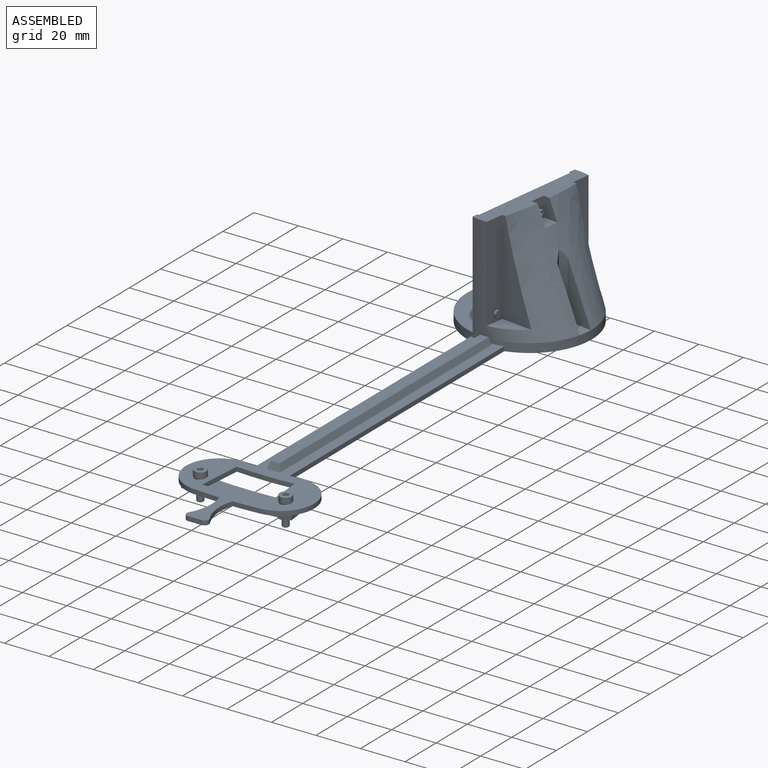
[diagram: assembled view]
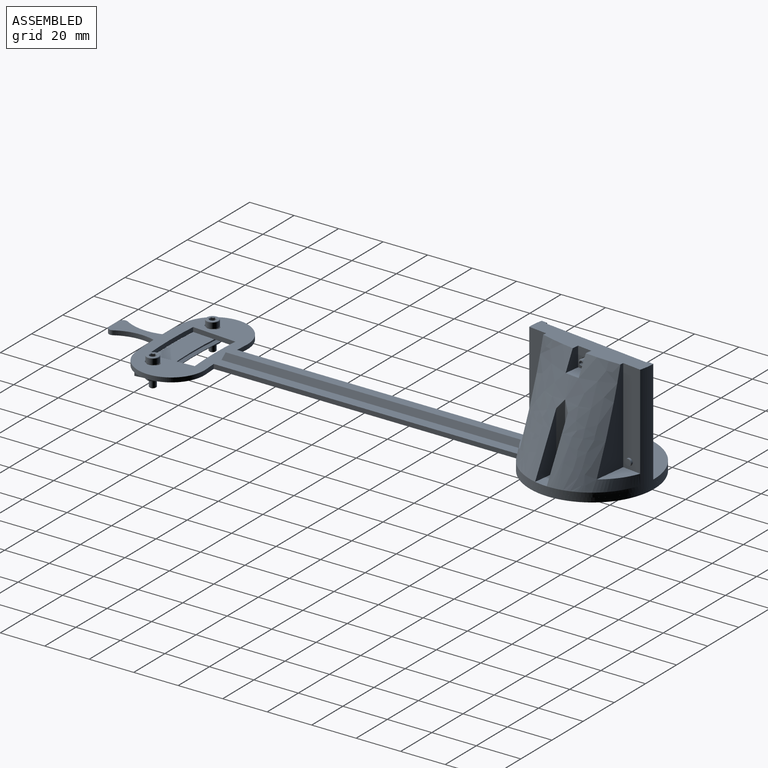
[diagram: assembled view, second angle]
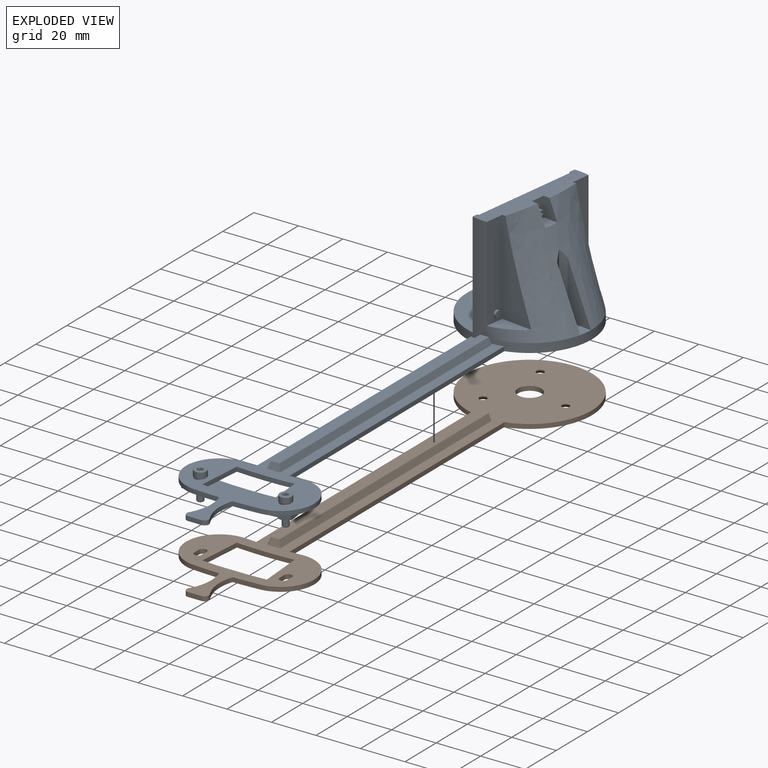
[diagram: exploded view]
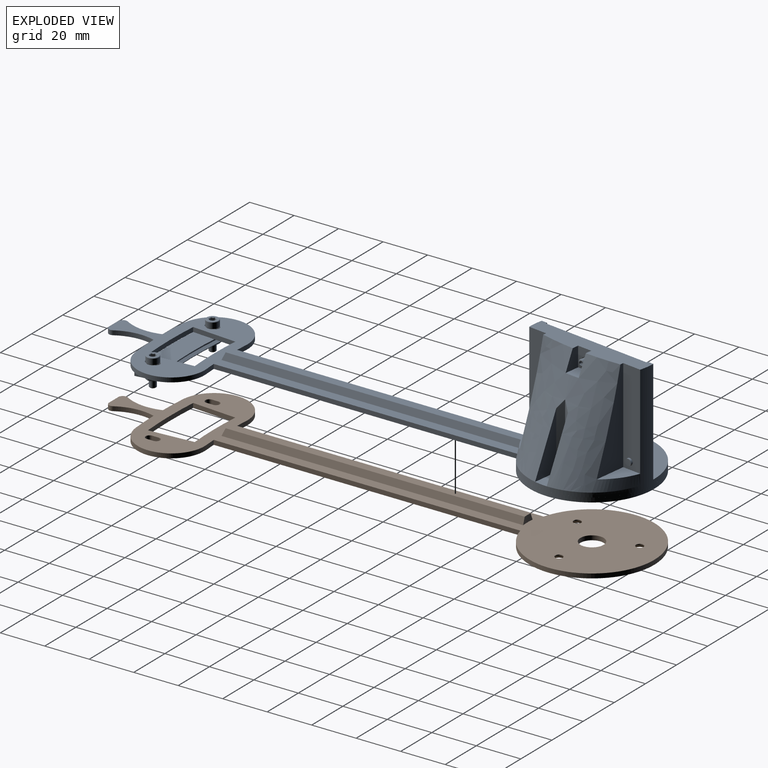
[diagram: exploded view, second angle]
FCSTD DOCUMENT  (FreeCAD 1.0RUnknown)
Label: IndexArm
License: All rights reserved
LicenseURL: http://en.wikipedia.org/wiki/All_rights_reserved
objects: PartDesign::CoordinateSystem×10, Part::FeaturePython×10, Sketcher::SketchObject×6, App::Link×5, PartDesign::Plane×4, App::DocumentObjectGroup×3, PartDesign::Pad×2, PartDesign::Pocket×2, PartDesign::SubShapeBinder×1, App::FeaturePython×1, App::Part×1, PartDesign::Draft×1, PartDesign::Hole×1, PartDesign::Body×1
note: 56 computed .brp shape members not serialized (recipe doc carries the construction recipe); baked Part::Feature solids carry a one-line shape summary decoded from their .brp
EXTERNAL_REF file=Resources.FCStd obj=Spreadsheet
EXTERNAL_REF file=Scale.FCStd obj=Body
EXTERNAL_REF file=IndexMirror.FCStd obj=LCS_Origin
EXTERNAL_REF file=Shaft.FCStd obj=DatumPlane
EXTERNAL_REF file=IndexMirror.FCStd obj=Assembly
EXTERNAL_REF file=Scale.FCStd obj=LCS_Origin
EXTERNAL_REF file=Scale.FCStd obj=Part
EXTERNAL_REF file=Shaft.FCStd obj=DatumPlane001
EXTERNAL_REF file=Shaft.FCStd obj=Body
EXTERNAL_REF file=Shaft.FCStd obj=DatumPlane002
EXTERNAL_REF file=Shaft.FCStd obj=DatumPlane003

FEATURE [App::Link] Link  label="Dimensions"
  LinkedObject = -> <external Resources.FCStd>#Spreadsheet
FEATURE [PartDesign::SubShapeBinder] Binder
  BindCopyOnChange = 0
  BindMode = 0
  ClaimChildren = false
  Context = -> Body001 [Hole.Binder.]
  Fuse = false
  MakeFace = true
  OffsetFill = false
  OffsetIntersection = false
  OffsetJoinType = 0
  OffsetOpenResult = false
  PartialLoad = false
  Placement = pos=(0,0,2) rot=(0,0,1;0rad)
  Relative = true
  Support = -> [<external Scale.FCStd>#Body[Hole001.Sketch005.]]
  _Version = 2
  expr: .Placement.Base.z = <<Dimensions>>.index_arm_thickness
FEATURE [PartDesign::CoordinateSystem] Local_CS  label="LCS_ShaftBottom"
  AttacherType = Attacher::AttachEngine3D
  AttachmentSupport = -> [X_Axis004]
  MapMode = 2
FEATURE [PartDesign::CoordinateSystem] Local_CS001  label="LCS_ShaftTop"
  AttacherType = Attacher::AttachEngine3D
  AttachmentOffset = pos=(0,0,2) rot=(0,0,1;0rad)
  AttachmentSupport = -> [X_Axis004]
  MapMode = 2
  Placement = pos=(0,0,2) rot=(0,0,1;0rad)
  expr: .AttachmentOffset.Base.z = <<Dimensions>>.index_arm_thickness
FEATURE [PartDesign::CoordinateSystem] LCS_Origin
  AttacherType = Attacher::AttachEngine3D
  AttachmentSupport = -> [X_Axis]
  MapMode = 2
FEATURE [App::DocumentObjectGroup] Constraints
FEATURE [App::FeaturePython] Variables  # WARN: FeaturePython — macro-defined, semantics opaque (R4)
  Type = App::PropertyContainer
FEATURE [App::DocumentObjectGroup] Configurations
FEATURE [App::Link] IndexMirror
  AttachedBy = #LCS_Origin
  AttachedTo = Shaft#DatumPlane
  LinkPlacement = pos=(0,0,3) rot=(0,0,-1;0.1309rad)
  LinkedObject = -> <external IndexMirror.FCStd>#Assembly
  Placement = pos=(0,0,3) rot=(0,0,-1;0.1309rad)
  SolverId = Asm4EE
  expr: Placement = Shaft.Placement * Shaft#DatumPlane.Placement * AttachmentOffset * IndexMirror#LCS_Origin.Placement ^ -1
FEATURE [App::Link] IndexArm  label="IndexArm001"
  AttachedBy = #Local_CS
  AttachedTo = Parent Assembly#LCS_Origin
  LinkedObject = -> Body001
  SolverId = Asm4EE
  expr: Placement = LCS_Origin.Placement * AttachmentOffset * Local_CS.Placement ^ -1
FEATURE [Part::FeaturePython] Screw  label="M3x8-Screw"  # WARN: FeaturePython — macro-defined, semantics opaque (R4)
  AttachedBy = Origin
  AttachedTo = IndexArm#Local_CS003
  AttachmentOffset = pos=(0,0,0) rot=(0,1,0;3.14159rad)
  Diameter = 3
  Invert = false
  LeftHanded = false
  Length = 0
  LengthCustom = 8
  MatchOuter = false
  OffsetAngle = 0
  Placement = pos=(-6.8883,16.6298,0) rot=(-0.707107,0.707107,0;3.14159rad)
  SolverId = Asm4EE
  Thread = false
  Type = 50
  expr: Placement = IndexArm.Placement * Local_CS003.Placement * AttachmentOffset
FEATURE [Part::FeaturePython] Screw001  label="M3x8-Screw655"  # WARN: FeaturePython — macro-defined, semantics opaque (R4)
  AttachedBy = Origin
  AttachedTo = IndexArm#Local_CS004
  AttachmentOffset = pos=(0,0,0) rot=(0,1,0;3.14159rad)
  Diameter = 3
  Invert = false
  LeftHanded = false
  Length = 0
  LengthCustom = 8
  MatchOuter = false
  OffsetAngle = 0
  Placement = pos=(17.846,-2.34947,0) rot=(-0.707107,0.707107,0;3.14159rad)
  SolverId = Asm4EE
  Thread = false
  Type = 50
  expr: Placement = IndexArm.Placement * Local_CS004.Placement * AttachmentOffset
FEATURE [Part::FeaturePython] Screw002  label="M3x8-Screw656"  # WARN: FeaturePython — macro-defined, semantics opaque (R4)
  AttachedBy = Origin
  AttachedTo = IndexArm#Local_CS005
  AttachmentOffset = pos=(0,0,0) rot=(0,1,0;3.14159rad)
  Diameter = 3
  Invert = false
  LeftHanded = false
  Length = 0
  LengthCustom = 8
  MatchOuter = false
  OffsetAngle = 0
  Placement = pos=(-10.9577,-14.2804,0) rot=(-0.707107,0.707107,0;3.14159rad)
  SolverId = Asm4EE
  Thread = false
  Type = 50
  expr: Placement = IndexArm.Placement * Local_CS005.Placement * AttachmentOffset
FEATURE [Part::FeaturePython] Nut  label="M3-Nut1361"  # WARN: FeaturePython — macro-defined, semantics opaque (R4)
  AttachedBy = Origin
  AttachedTo = IndexArm#Local_CS003
  AttachmentOffset = pos=(0,0,4) rot=(0,0,1;0rad)
  Diameter = 4
  Invert = false
  LeftHanded = false
  MatchOuter = false
  OffsetAngle = 0
  Placement = pos=(-6.8883,16.6298,4) rot=(0,0,1;1.5708rad)
  SolverId = Asm4EE
  Thread = false
  Type = 31
  expr: .AttachmentOffset.Base.z = <<Dimensions>>.index_arm_thickness + <<Dimensions>>.index_mirror_base_thickness + <<Dimensions>>.shaft_base_thickness
  expr: Placement = IndexArm.Placement * Local_CS003.Placement * AttachmentOffset
FEATURE [Part::FeaturePython] Nut001  label="M3-Nut"  # WARN: FeaturePython — macro-defined, semantics opaque (R4)
  AttachedBy = Origin
  AttachedTo = IndexArm#Local_CS004
  AttachmentOffset = pos=(0,0,4) rot=(0,0,1;0rad)
  Diameter = 4
  Invert = false
  LeftHanded = false
  MatchOuter = false
  OffsetAngle = 0
  Placement = pos=(17.846,-2.34947,4) rot=(0,0,1;1.5708rad)
  SolverId = Asm4EE
  Thread = false
  Type = 31
  expr: .AttachmentOffset.Base.z = <<Dimensions>>.index_arm_thickness + <<Dimensions>>.index_mirror_base_thickness + <<Dimensions>>.shaft_base_thickness
  expr: Placement = IndexArm.Placement * Local_CS004.Placement * AttachmentOffset
FEATURE [Part::FeaturePython] Nut002  label="M3-Nut1362"  # WARN: FeaturePython — macro-defined, semantics opaque (R4)
  AttachedBy = Origin
  AttachedTo = IndexArm#Local_CS005
  AttachmentOffset = pos=(0,0,4) rot=(0,0,1;0rad)
  Diameter = 4
  Invert = false
  LeftHanded = false
  MatchOuter = false
  OffsetAngle = 0
  Placement = pos=(-10.9577,-14.2804,4) rot=(0,0,1;1.5708rad)
  SolverId = Asm4EE
  Thread = false
  Type = 31
  expr: .AttachmentOffset.Base.z = <<Dimensions>>.index_arm_thickness + <<Dimensions>>.index_mirror_base_thickness + <<Dimensions>>.shaft_base_thickness
  expr: Placement = IndexArm.Placement * Local_CS005.Placement * AttachmentOffset
FEATURE [Part::FeaturePython] Screw004  label="M3x10-Screw001"  # WARN: FeaturePython — macro-defined, semantics opaque (R4)
  AttachedBy = Origin
  AttachedTo = IndexArm#Local_CS007
  Diameter = 4
  Invert = false
  LeftHanded = false
  Length = 3
  LengthCustom = 10
  MatchOuter = false
  OffsetAngle = 0
  Placement = pos=(-19.1818,-184.003,2) rot=(0,0,1;0rad)
  SolverId = Asm4EE
  Thread = false
  Type = 74
  expr: Placement = IndexArm.Placement * Local_CS007.Placement * AttachmentOffset
FEATURE [Part::FeaturePython] Screw005  label="M3x10-Screw"  # WARN: FeaturePython — macro-defined, semantics opaque (R4)
  AttachedBy = Origin
  AttachedTo = IndexArm#Local_CS008
  Diameter = 4
  Invert = false
  LeftHanded = false
  Length = 3
  LengthCustom = 10
  MatchOuter = false
  OffsetAngle = 0
  Placement = pos=(19.1818,-184.003,2) rot=(0,0,1;0rad)
  SolverId = Asm4EE
  Thread = false
  Type = 74
  expr: Placement = IndexArm.Placement * Local_CS008.Placement * AttachmentOffset
FEATURE [Part::FeaturePython] Nut004  label="M3-Nut1363"  # WARN: FeaturePython — macro-defined, semantics opaque (R4)
  AttachedBy = Origin
  AttachedTo = IndexArm#Local_CS007
  AttachmentOffset = pos=(0,0,-4) rot=(0,1,0;3.14159rad)
  Diameter = 4
  Invert = false
  LeftHanded = false
  MatchOuter = false
  OffsetAngle = 0
  Placement = pos=(-19.1818,-184.003,-2) rot=(0,1,0;3.14159rad)
  SolverId = Asm4EE
  Thread = false
  Type = 31
  expr: .AttachmentOffset.Base.z = -<<Dimensions>>.index_arm_thickness - <<Dimensions>>.scale_thickness
  expr: Placement = IndexArm.Placement * Local_CS007.Placement * AttachmentOffset
FEATURE [Part::FeaturePython] Nut005  label="M3-Nut1364"  # WARN: FeaturePython — macro-defined, semantics opaque (R4)
  AttachedBy = Origin
  AttachedTo = IndexArm#Local_CS008
  AttachmentOffset = pos=(0,0,-4) rot=(0,1,0;3.14159rad)
  Diameter = 4
  Invert = false
  LeftHanded = false
  MatchOuter = false
  OffsetAngle = 0
  Placement = pos=(19.1818,-184.003,-2) rot=(0,1,0;3.14159rad)
  SolverId = Asm4EE
  Thread = false
  Type = 31
  expr: .AttachmentOffset.Base.z = -<<Dimensions>>.index_arm_thickness - <<Dimensions>>.scale_thickness
  expr: Placement = IndexArm.Placement * Local_CS008.Placement * AttachmentOffset
FEATURE [App::Link] VernierScale
  AttachedBy = #LCS_Origin
  AttachedTo = IndexArm#Local_CS
  LinkPlacement = pos=(0,0,-2) rot=(0,0,1;0rad)
  LinkedObject = -> <external Scale.FCStd>#Part
  Placement = pos=(0,0,-2) rot=(0,0,1;0rad)
  SolverId = Asm4EE
  expr: Placement = IndexArm.Placement * Local_CS.Placement * AttachmentOffset * Scale#LCS_Origin.Placement ^ -1
FEATURE [PartDesign::CoordinateSystem] LCS_IndexMirrorAttachment
  AttacherType = Attacher::AttachEngine3D
  AttachmentOffset = pos=(0,0,0) rot=(0,0,-1;0.1309rad)
  AttachmentSupport = -> [Local_CS001]
  MapMode = 2
  Placement = pos=(0,0,2) rot=(0,0,-1;0.1309rad)
  expr: .AttachmentOffset.Rotation.Yaw = <<Dimensions>>.horizon_mirror_angle - 30 °
FEATURE [App::Link] Shaft
  AttachedBy = #DatumPlane001
  AttachedTo = IndexArm#LCS_IndexMirrorAttachment
  LinkPlacement = pos=(0,0,3) rot=(0,0,-1;0.1309rad)
  LinkedObject = -> <external Shaft.FCStd>#Body
  Placement = pos=(0,0,3) rot=(0,0,-1;0.1309rad)
  SolverId = Asm4EE
  expr: Placement = IndexArm.Placement * LCS_IndexMirrorAttachment.Placement * AttachmentOffset * Shaft#DatumPlane001.Placement ^ -1
FEATURE [PartDesign::Plane] Shaft_Plane_Spacer
  AttachedBy = Origin
  Length = 67.3183
  Placement = pos=(0,0,-4) rot=(0,0,-1;0.1309rad)
  ResizeMode = 0
  SolverId = Asm4EE
  Width = 67.3183
  expr: Placement = Shaft.Placement * Shaft#DatumPlane002.Placement
FEATURE [PartDesign::CoordinateSystem] LCS_1  label="LCS_Attachment"
  AttacherType = Attacher::AttachEngine3D
  AttachmentOffset = pos=(0,0,0) rot=(0,0,-1;0.392699rad)
  AttachmentSupport = -> [Shaft_Plane_Spacer]
  MapMode = 5
  Placement = pos=(0,0,-4) rot=(0,0,-1;0.523599rad)
  expr: .AttachmentOffset.Rotation.Angle = <<Dimensions>>.horizon_mirror_angle
FEATURE [PartDesign::Plane] Shaft_Plane_ShaftEnd
  AttachedBy = Origin
  Length = 67.3183
  Placement = pos=(0,0,-10) rot=(0,0,-1;0.1309rad)
  ResizeMode = 0
  SolverId = Asm4EE
  Width = 67.3183
  expr: Placement = Shaft.Placement * Shaft#DatumPlane003.Placement
FEATURE [App::Part] Assembly
  AssemblyType = Part::Link
  Group = -> [LCS_Origin,Constraints,Variables,Configurations,IndexMirror,IndexArm,Screw,Screw001,Screw002,Nut,Nut001,Nut002,Screw004,Screw005,Nut004,Nut005,VernierScale,LCS_1,Shaft,Shaft_Plane_Spacer,Shaft_Plane_ShaftEnd]
  Origin = -> Origin
  Type = Assembly
FEATURE [PartDesign::Plane] DatumPlane  label="Plane_Bottom"
  AttachmentSupport = -> [XY_Plane004]
  Length = 60
  MapMode = 5
  ResizeMode = 0
  Width = 60
FEATURE [Sketcher::SketchObject] Sketch
  ArcFitTolerance = 0
  AttachmentSupport = -> [DatumPlane]
  FullyConstrained = true
  MakeInternals = false
  MapMode = 5
  expr: Constraints[0] = <<Dimensions>>.index_mirror_screw_center_distance
  expr: Constraints[14] = <<Dimensions>>.horizon_mirror_angle
  expr: Constraints[3] = <<Dimensions>>.index_mirror_screw_diameter
  sketch-geometry (6):
    g0: Circle CenterX=-6.8883 CenterY=16.6298 CenterZ=0 NormalX=0 NormalY=0 NormalZ=1 AngleXU=0 Radius=1.5
    g1: LineSegment [constr] StartX=-6.8883 StartY=16.6298 StartZ=0 EndX=0 EndY=0 EndZ=0
    g2: Circle CenterX=17.846 CenterY=-2.34947 CenterZ=0 NormalX=0 NormalY=0 NormalZ=1 AngleXU=0 Radius=1.5
    g3: Circle CenterX=-10.9577 CenterY=-14.2804 CenterZ=0 NormalX=0 NormalY=0 NormalZ=1 AngleXU=0 Radius=1.5
    g4: LineSegment [constr] StartX=0 StartY=0 StartZ=0 EndX=17.846 EndY=-2.34947 EndZ=0
    g5: LineSegment [constr] StartX=0 StartY=0 StartZ=0 EndX=-10.9577 EndY=-14.2804 EndZ=0
  constraints (15):
    c: Distance(g-1,g0) = 18
    c: Coincident(g1,g0)
    c: Coincident(g1,g-1)
    c: Diameter(g0) = 3
    c: Equal(g0,g3)
    c: Equal(g0,g2)
    c: Coincident(g4,g1)
    c: Coincident(g4,g2)
    c: Coincident(g5,g1)
    c: Coincident(g5,g3)
    c: Equal(g5,g1)
    c: Equal(g4,g1)
    c: Angle(g1,g5) = 2.0944
    c: Angle(g5,g4) = 2.0944
    c: Angle(g-2,g1) = 0.392699
FEATURE [PartDesign::CoordinateSystem] Local_CS003  label="LCS_BoltIndexmirror1"
  AttacherType = Attacher::AttachEngine3D
  AttachmentSupport = -> [Sketch]
  MapMode = 11
  Placement = pos=(-6.8883,16.6298,0) rot=(0,0,1;1.5708rad)
FEATURE [PartDesign::CoordinateSystem] Local_CS004  label="LCS_BoltIndexmirror2"
  AttacherType = Attacher::AttachEngine3D
  AttachmentSupport = -> [Sketch]
  MapMode = 11
  Placement = pos=(17.846,-2.34947,0) rot=(0,0,1;1.5708rad)
FEATURE [PartDesign::CoordinateSystem] Local_CS005  label="LCS_BoltIndexmirror3"
  AttacherType = Attacher::AttachEngine3D
  AttachmentSupport = -> [Sketch]
  MapMode = 11
  Placement = pos=(-10.9577,-14.2804,0) rot=(0,0,1;1.5708rad)
FEATURE [PartDesign::Plane] DatumPlane001  label="Plane_Top"
  AttachmentOffset = pos=(0,0,2) rot=(0,0,1;0rad)
  AttachmentSupport = -> [DatumPlane]
  Length = 60
  MapMode = 5
  Placement = pos=(0,0,2) rot=(0,0,1;0rad)
  ResizeMode = 0
  Width = 60
  expr: .AttachmentOffset.Base.z = <<Dimensions>>.index_arm_thickness
FEATURE [Sketcher::SketchObject] Sketch001
  ArcFitTolerance = 0
  AttachmentSupport = -> [DatumPlane001]
  FullyConstrained = true
  MakeInternals = false
  MapMode = 5
  Placement = pos=(0,0,2) rot=(0,0,1;0rad)
  expr: Constraints[13] = <<Dimensions>>.scale_outer_radius
  expr: Constraints[4] = <<Dimensions>>.index_arm_window_width
  expr: Constraints[5] = <<Dimensions>>.index_arm_window_height
  sketch-geometry (10):
    g0: ArcOfCircle CenterX=-1.8e-15 CenterY=0 CenterZ=0 NormalX=0 NormalY=0 NormalZ=1 AngleXU=0 Radius=190.029 StartAngle=4.63583 EndAngle=4.78895
    g1: ArcOfCircle CenterX=-1.8e-15 CenterY=0 CenterZ=0 NormalX=0 NormalY=0 NormalZ=1 AngleXU=0 Radius=169.971 StartAngle=4.63583 EndAngle=4.78895
    g2: LineSegment StartX=-13 StartY=-169.473 StartZ=0 EndX=-14.5342 EndY=-189.473 EndZ=0
    g3: LineSegment StartX=13 StartY=-169.473 StartZ=0 EndX=14.5342 EndY=-189.473 EndZ=0
    g4: GeomPoint [constr] X=0 Y=-169.473 Z=0
    g5: GeomPoint [constr] X=0 Y=-190.029 Z=0
    g6: GeomPoint [constr] X=0 Y=-169.971 Z=0
    g7: GeomPoint [constr] X=0 Y=-180 Z=0
    g8: LineSegment [constr] StartX=-1.8e-15 StartY=0 StartZ=0 EndX=-13 EndY=-169.473 EndZ=0
    g9: LineSegment [constr] StartX=13 StartY=-169.473 StartZ=0 EndX=-1.8e-15 EndY=0 EndZ=0
  constraints (22):
    c: Coincident(g2,g1)
    c: Coincident(g2,g0)
    c: Coincident(g3,g1)
    c: Coincident(g3,g0)
    c: DistanceX(g1,g1) = 26
    c: DistanceY(g2,g2) = 20
    c: PointOnObject(g4,g-2)
    c: Symmetric(g1,g1,g4)
    c: PointOnObject(g5,g0)
    c: PointOnObject(g5,g-2)
    c: PointOnObject(g6,g1)
    c: PointOnObject(g6,g-2)
    c: Symmetric(g5,g6,g7)
    c: Distance(g7,g0) = 180
    c: Coincident(g0,g-1)
    c: Coincident(g1,g0)
    c: Coincident(g8,g0)
    c: Coincident(g8,g1)
    c: Parallel(g8,g2)
    c: Coincident(g9,g1)
    c: Coincident(g9,g0)
    c: Parallel(g9,g3)
FEATURE [Sketcher::SketchObject] Sketch003
  ArcFitTolerance = 0
  AttachmentSupport = -> [DatumPlane]
  ExternalGeometry = -> [Sketch001]
  FullyConstrained = true
  MakeInternals = false
  MapMode = 5
  expr: Constraints[23] = <<Dimensions>>.index_mirror_base_diameter / 2
  expr: Constraints[3] = <<Dimensions>>.index_arm_width
  expr: Constraints[4] = 5 mm
  expr: Constraints[6] = <<Dimensions>>.bearing_da + 2 * <<Dimensions>>.clearance_loose_fit
  sketch-geometry (20):
    g0: LineSegment StartX=-7.5 StartY=-26.9768 StartZ=0 EndX=-7.5 EndY=-164.8 EndZ=0
    g1: LineSegment StartX=7.5 StartY=-26.9768 StartZ=0 EndX=7.5 EndY=-164.8 EndZ=0
    g2: GeomPoint [constr] X=0 Y=-190.029 Z=0
    g3: GeomPoint [constr] X=0 Y=-195.029 Z=0
    g4: Circle CenterX=0 CenterY=0 CenterZ=0 NormalX=0 NormalY=0 NormalZ=1 AngleXU=0 Radius=5.25
    g5: ArcOfCircle CenterX=-13.7671 CenterY=-179.473 CenterZ=0 NormalX=0 NormalY=0 NormalZ=1 AngleXU=0 Radius=15.0294 StartAngle=1.49424 EndAngle=4.63583
    g6: ArcOfCircle CenterX=13.7671 CenterY=-179.473 CenterZ=0 NormalX=0 NormalY=0 NormalZ=1 AngleXU=0 Radius=15.0294 StartAngle=4.78895 EndAngle=7.93054
    g7: ArcOfCircle CenterX=0 CenterY=0 CenterZ=0 NormalX=0 NormalY=0 NormalZ=1 AngleXU=0 Radius=164.971 StartAngle=4.63583 EndAngle=4.66691
    g8: ArcOfCircle CenterX=0 CenterY=0 CenterZ=0 NormalX=0 NormalY=0 NormalZ=1 AngleXU=0 Radius=164.971 StartAngle=4.75787 EndAngle=4.78895
    g9: ArcOfCircle CenterX=0 CenterY=0 CenterZ=0 NormalX=0 NormalY=0 NormalZ=1 AngleXU=0 Radius=28 StartAngle=4.98356 EndAngle=10.7244
    g10: LineSegment [constr] StartX=-7.5 StartY=-26.9768 StartZ=0 EndX=0 EndY=-26.9768 EndZ=0
    g11: LineSegment [constr] StartX=0 StartY=-26.9768 StartZ=0 EndX=7.5 EndY=-26.9768 EndZ=0
    g12: ArcOfCircle CenterX=-3 CenterY=-213.029 CenterZ=0 NormalX=0 NormalY=0 NormalZ=1 AngleXU=0 Radius=2 StartAngle=2.61227 EndAngle=4.71239
    g13: LineSegment StartX=-3 StartY=-215.029 StartZ=0 EndX=3 EndY=-215.029 EndZ=0
    g14: ArcOfCircle CenterX=3 CenterY=-213.029 CenterZ=0 NormalX=0 NormalY=0 NormalZ=1 AngleXU=0 Radius=2 StartAngle=4.71239 EndAngle=6.8125
    g15: ArcOfCircle CenterX=22.5 CenterY=-201.622 CenterZ=0 NormalX=0 NormalY=0 NormalZ=1 AngleXU=0 Radius=20.5916 StartAngle=2.81452 EndAngle=3.67091
    g16: ArcOfCircle CenterX=-22.5 CenterY=-201.622 CenterZ=0 NormalX=0 NormalY=0 NormalZ=1 AngleXU=0 Radius=20.5916 StartAngle=5.75387 EndAngle=6.61026
    g17: ArcOfCircle CenterX=0 CenterY=0 CenterZ=0 NormalX=0 NormalY=0 NormalZ=1 AngleXU=0 Radius=195.029 StartAngle=4.63583 EndAngle=4.69701
    g18: ArcOfCircle [constr] CenterX=0 CenterY=0 CenterZ=0 NormalX=0 NormalY=0 NormalZ=1 AngleXU=0 Radius=195.029 StartAngle=4.69701 EndAngle=4.72777
    g19: ArcOfCircle CenterX=0 CenterY=0 CenterZ=0 NormalX=0 NormalY=0 NormalZ=1 AngleXU=0 Radius=195.029 StartAngle=4.72777 EndAngle=4.78895
  constraints (50):
    c: Vertical(g0)
    c: Vertical(g1)
    c: Equal(g0,g1)
    c: DistanceX(g0,g1) = 15
    c: Distance(g3,g2) = 5
    c: PointOnObject(g3,g-2)
    c: Diameter(g4) = 10.5
    c: Tangent(g6,g19) = -1.5708
    c: Tangent(g5,g17) = -1.5708
    c: Coincident(g7,g0)
    c: Tangent(g7,g5) = 1.5708
    c: Coincident(g8,g1)
    c: Tangent(g8,g6) = 1.5708
    c: Coincident(g9,g4)
    c: Coincident(g9,g0)
    c: Coincident(g1,g9)
    c: Coincident(g4,g-1)
    c: Coincident(g7,g4)
    c: Coincident(g10,g0)
    c: PointOnObject(g10,g-2)
    c: Horizontal(g10)
    c: Coincident(g11,g10)
    c: Coincident(g11,g1)
    c: Radius(g9) = 28
    c: Symmetric(g-4,g-5,g5)
    c: Coincident(g17,g4)
    c: Symmetric(g-6,g-6,g6)
    c: Coincident(g8,g17)
    c: PointOnObject(g2,g-5)
    c: PointOnObject(g2,g-2)
    c: Tangent(g12,g13) = -1.5708
    c: Tangent(g13,g14) = -1.5708
    c: Tangent(g14,g15) = 1.5708
    c: Coincident(g17,g18)
    c: Coincident(g17,g18)
    c: Coincident(g18,g19)
    c: Coincident(g18,g19)
    c: PointOnObject(g3,g18)
    c: Coincident(g17,g16)
    c: Coincident(g18,g15)
    c: Symmetric(g13,g12,g-2)
    c: Radius(g12) = 2
    c: Equal(g12,g14)
    c: DistanceY(g12,g3) = 20
    c: Vertical(g13,g15)
    c: Vertical(g12,g16)
    c: DistanceX(g13,g13) = 6
    c: Tangent(g16,g12) = 1.5708
    c: DistanceX(g16,g15) = 45
    c: Equal(g16,g15)
FEATURE [PartDesign::Pad] Pad
  Direction = (0,0,1)
  Length = 2
  Length2 = 10
  Profile = -> Sketch003
  ReferenceAxis = -> Sketch003 [N_Axis]
  Suppressed = false
  Type = 3
  UpToFace = -> DatumPlane001 [Plane]
  expr: Length = <<Dimensions>>.index_arm_thickness
FEATURE [Sketcher::SketchObject] Sketch004
  ArcFitTolerance = 0
  AttachmentSupport = -> [DatumPlane001]
  ExternalGeometry = -> [Sketch001]
  FullyConstrained = true
  MakeInternals = false
  MapMode = 5
  Placement = pos=(0,0,2) rot=(0,0,1;0rad)
  expr: Constraints[7] = <<Dimensions>>.index_mirror_base_diameter / 2 + 1 mm
  sketch-geometry (4):
    g0: LineSegment StartX=3 StartY=-28.8444 StartZ=0 EndX=3 EndY=-164.473 EndZ=0
    g1: LineSegment StartX=3 StartY=-164.473 StartZ=0 EndX=-3 EndY=-164.473 EndZ=0
    g2: LineSegment StartX=-3 StartY=-164.473 StartZ=0 EndX=-3 EndY=-28.8444 EndZ=0
    g3: ArcOfCircle CenterX=0 CenterY=0 CenterZ=0 NormalX=0 NormalY=0 NormalZ=1 AngleXU=0 Radius=29 StartAngle=4.60876 EndAngle=4.81602
  constraints (11):
    c: Coincident(g0,g1)
    c: Coincident(g1,g2)
    c: Vertical(g0)
    c: Vertical(g2)
    c: Coincident(g3,g-1)
    c: Coincident(g3,g2)
    c: Coincident(g3,g0)
    c: Radius(g3) = 29
    c: Symmetric(g1,g0,g-2)
    c: Distance(g1) = 6
    c: DistanceY(g-3,g1) = 5
FEATURE [PartDesign::Pad] Pad001
  BaseFeature = -> Pad
  Direction = (0,0,1)
  Length = 3
  Length2 = 10
  Profile = -> Sketch004
  ReferenceAxis = -> Sketch004 [N_Axis]
  Suppressed = false
  Type = 0
FEATURE [PartDesign::Draft] Draft
  Angle = 20
  Base = -> Pad001 [Face19,Face20,Face21]
  BaseFeature = -> Pad001
  NeutralPlane = -> DatumPlane001
  SupportTransform = false
  Suppressed = false
FEATURE [PartDesign::Pocket] Pocket  label="WindowPocket"
  BaseFeature = -> Draft
  Direction = (0,0,-1)
  Length = 5
  Length2 = 5
  Profile = -> Sketch001
  ReferenceAxis = -> Sketch001 [N_Axis]
  Suppressed = false
  Type = 1
FEATURE [PartDesign::Hole] Hole001  label="AttachmentHoles"
  BaseFeature = -> Pocket
  CustomThreadClearance = 0
  Depth = 478.321
  DepthType = 1
  Diameter = 3.4
  DrillForDepth = false
  DrillPoint = 1
  DrillPointAngle = 118
  HoleCutCountersinkAngle = 90
  HoleCutCustomValues = false
  HoleCutDepth = 0
  HoleCutDiameter = 6.72
  HoleCutType = 2
  ModelThread = false
  Profile = -> Sketch
  Reversed = true
  Suppressed = false
  Tapered = false
  TaperedAngle = 90
  ThreadClass = 0
  ThreadDepth = 478.321
  ThreadDepthType = 0
  ThreadDirection = 0
  ThreadFit = 0
  ThreadSize = 9
  ThreadType = 1
  Threaded = false
  UseCustomThreadClearance = false
  expr: HoleCutDiameter = <<Dimensions>>.index_mirror_countersink_diameter
  expr: ThreadSize = <<Dimensions>>.index_mirror_screw_type
FEATURE [Sketcher::SketchObject] Sketch005
  ArcFitTolerance = 0
  AttachmentSupport = -> [DatumPlane001]
  ExternalGeometry = -> [Binder]
  FullyConstrained = true
  MakeInternals = false
  MapMode = 5
  Placement = pos=(0,0,2) rot=(0,0,1;0rad)
  sketch-geometry (10):
    g0: ArcOfCircle CenterX=-19.1818 CenterY=-182.503 CenterZ=0 NormalX=0 NormalY=0 NormalZ=1 AngleXU=0 Radius=1.7 StartAngle=-4.4e-15 EndAngle=3.14159
    g1: ArcOfCircle CenterX=-19.1818 CenterY=-185.503 CenterZ=0 NormalX=0 NormalY=0 NormalZ=1 AngleXU=0 Radius=1.7 StartAngle=3.14159 EndAngle=6.28319
    g2: LineSegment StartX=-20.8818 StartY=-182.503 StartZ=0 EndX=-20.8818 EndY=-185.503 EndZ=0
    g3: LineSegment StartX=-17.4818 StartY=-185.503 StartZ=0 EndX=-17.4818 EndY=-182.503 EndZ=0
    g4: ArcOfCircle CenterX=19.1818 CenterY=-182.503 CenterZ=0 NormalX=0 NormalY=0 NormalZ=1 AngleXU=0 Radius=1.7 StartAngle=-9e-16 EndAngle=3.14159
    g5: ArcOfCircle CenterX=19.1818 CenterY=-185.503 CenterZ=0 NormalX=0 NormalY=0 NormalZ=1 AngleXU=0 Radius=1.7 StartAngle=3.14159 EndAngle=6.28319
    g6: LineSegment StartX=17.4818 StartY=-182.503 StartZ=0 EndX=17.4818 EndY=-185.503 EndZ=0
    g7: LineSegment StartX=20.8818 StartY=-185.503 StartZ=0 EndX=20.8818 EndY=-182.503 EndZ=0
    g8: GeomPoint X=-19.1818 Y=-184.003 Z=0
    g9: GeomPoint X=19.1818 Y=-184.003 Z=0
  constraints (20):
    c: Tangent(g0,g2) = -1.5708
    c: Tangent(g2,g1) = -1.5708
    c: Tangent(g1,g3) = -1.5708
    c: Tangent(g3,g0) = -1.5708
    c: Equal(g0,g1)
    c: Tangent(g4,g6) = -1.5708
    c: Tangent(g6,g5) = -1.5708
    c: Tangent(g5,g7) = -1.5708
    c: Tangent(g7,g4) = -1.5708
    c: Equal(g4,g5)
    c: Symmetric(g0,g1,g-3)
    c: Vertical(g3)
    c: Symmetric(g4,g5,g-4)
    c: Vertical(g7)
    c: Diameter(g0) = 3.4
    c: Equal(g0,g4)
    c: Equal(g6,g3)
    c: Distance(g2) = 3
    c: Coincident(g8,g-3)
    c: Coincident(g9,g-4)
FEATURE [PartDesign::CoordinateSystem] Local_CS007  label="LCS_BoltScale1"
  AttacherType = Attacher::AttachEngine3D
  AttachmentSupport = -> [Sketch005]
  MapMode = 1
  Placement = pos=(-19.1818,-184.003,2) rot=(0,0,1;0rad)
FEATURE [PartDesign::CoordinateSystem] Local_CS008  label="LCS_BoltScale2"
  AttacherType = Attacher::AttachEngine3D
  AttachmentSupport = -> [Sketch005]
  MapMode = 1
  Placement = pos=(19.1818,-184.003,2) rot=(0,0,1;0rad)
FEATURE [PartDesign::Pocket] Pocket001
  BaseFeature = -> Hole001
  Direction = (0,0,-1)
  Length = 5
  Length2 = 5
  Profile = -> Sketch005
  ReferenceAxis = -> Sketch005 [N_Axis]
  Suppressed = false
  Type = 1
FEATURE [PartDesign::Body] Body001  label="IndexArm"
  AllowCompound = false
  Group = -> [DatumPlane001,DatumPlane,Pad,Sketch001,Sketch,Sketch003,Sketch004,Pad001,Draft,Sketch005,Pocket,Hole001,Binder,Local_CS003,Local_CS004,Local_CS005,Local_CS007,Local_CS008,Local_CS,Local_CS001,LCS_IndexMirrorAttachment,Pocket001]
  Origin = -> Origin004
  Tip = -> Pocket001
FEATURE [Sketcher::SketchObject] Sketch002
  ArcFitTolerance = 0
  AttachmentSupport = -> [Body001]
  FullyConstrained = true
  MakeInternals = false
  MapMode = 2
FEATURE [App::DocumentObjectGroup] Parts
  Group = -> [Body001,Sketch002]

RESOLVED EXTERNAL PARTS (link-assembly join: the EXTERNAL_REF files above that resolve inside this repo's crawl, each included once):
---- part IndexMirror.FCStd = doc fcstd_668d1b06b242 ----
FCSTD DOCUMENT  (FreeCAD 1.0RUnknown)
Label: IndexMirror
License: All rights reserved
LicenseURL: https://en.wikipedia.org/wiki/All_rights_reserved
objects: Sketcher::SketchObject×12, PartDesign::CoordinateSystem×7, App::Link×6, PartDesign::Plane×6, PartDesign::Pocket×4, App::DocumentObjectGroup×3, PartDesign::Pad×3, App::Part×3, PartDesign::Body×2, PartDesign::Line×2, PartDesign::Hole×2, App::FeaturePython×1, Part::FeaturePython×1, PartDesign::AdditiveLoft×1, PartDesign::PolarPattern×1
note: 74 computed .brp shape members not serialized (recipe doc carries the construction recipe); baked Part::Feature solids carry a one-line shape summary decoded from their .brp
EXTERNAL_REF file=Resources.FCStd obj=Spreadsheet
EXTERNAL_REF file=Parts.FCStd obj=LCS_Attachment
EXTERNAL_REF file=Parts.FCStd obj=Part
EXTERNAL_REF file=Parts.FCStd obj=LCS_Screw

FEATURE [PartDesign::CoordinateSystem] LCS_Origin
  AttacherType = Attacher::AttachEngine3D
  AttachmentSupport = -> [X_Axis]
  MapMode = 2
FEATURE [App::DocumentObjectGroup] Constraints
FEATURE [App::FeaturePython] Variables  # WARN: FeaturePython — macro-defined, semantics opaque (R4)
  Type = App::PropertyContainer
FEATURE [App::DocumentObjectGroup] Configurations
FEATURE [Sketcher::SketchObject] Sketch002
  ArcFitTolerance = 0
  AttachmentSupport = -> [XY_Plane004]
  FullyConstrained = true
  MakeInternals = false
  MapMode = 2
  expr: Constraints[4] = <<Dimensions>>.index_mirror_mirror_height
  expr: Constraints[8] = <<Dimensions>>.index_mirror_mirror_width
  sketch-geometry (4):
    g0: LineSegment StartX=25 StartY=0 StartZ=0 EndX=25 EndY=40 EndZ=0
    g1: LineSegment StartX=25 StartY=40 StartZ=0 EndX=-25 EndY=40 EndZ=0
    g2: LineSegment StartX=-25 StartY=40 StartZ=0 EndX=-25 EndY=0 EndZ=0
    g3: LineSegment StartX=-25 StartY=0 StartZ=0 EndX=25 EndY=0 EndZ=0
  constraints (11):
    c: Coincident(g0,g1)
    c: Coincident(g1,g2)
    c: Coincident(g2,g3)
    c: Coincident(g3,g0)
    c: Distance(g2) = 40
    c: Vertical(g0)
    c: Horizontal(g3)
    c: Horizontal(g1)
    c: Distance(g1) = 50
    c: Vertical(g2)
    c: Symmetric(g2,g0,g-1)
FEATURE [PartDesign::Pad] Pad002
  Direction = (0,0,1)
  Length = 3
  Length2 = 10
  Profile = -> Sketch002
  ReferenceAxis = -> Sketch002 [N_Axis]
  Suppressed = false
  Type = 0
  expr: Length = <<Dimensions>>.index_mirror_mirror_thickness
FEATURE [PartDesign::Body] Body001
  AllowCompound = false
  Group = -> [Sketch002,Pad002]
  Origin = -> Origin004
  Tip = -> Pad002
FEATURE [PartDesign::CoordinateSystem] LCS_Base
  AttacherType = Attacher::AttachEngine3D
  AttachmentSupport = -> [X_Axis002]
  MapMode = 2
FEATURE [App::Link] Main_Body  label="Main Body001"
  AttachedBy = #LCS_Base
  AttachedTo = Parent Assembly#LCS_Origin
  LinkedObject = -> Part
  SolverId = Asm4EE
  expr: Placement = LCS_Origin.Placement * AttachmentOffset * LCS_Base.Placement ^ -1
FEATURE [PartDesign::CoordinateSystem] LCS_MirrorBase
  AttacherType = Attacher::AttachEngine3D
  AttachmentOffset = pos=(0,0,5) rot=(0.57735,-0.57735,-0.57735;2.0944rad)
  AttachmentSupport = -> [X_Axis001]
  MapMode = 2
  Placement = pos=(0,0,5) rot=(0.57735,-0.57735,-0.57735;2.0944rad)
  expr: .AttachmentOffset.Base.z = <<Dimensions>>.index_mirror_mirror_offset
FEATURE [PartDesign::CoordinateSystem] LCS_Base001
  AttacherType = Attacher::AttachEngine3D
  AttachmentSupport = -> [X_Axis003]
  MapMode = 2
FEATURE [App::Part] Part001  label="Mirror"
  Group = -> [Body001,LCS_Base001]
  Origin = -> Origin003
FEATURE [App::Link] Mirror  label="Mirror001"
  AttachedBy = #LCS_Base001
  AttachedTo = Main_Body#LCS_MirrorBase
  LinkPlacement = pos=(0,0,5) rot=(0.57735,-0.57735,-0.57735;2.0944rad)
  LinkedObject = -> Part001
  Placement = pos=(0,0,5) rot=(0.57735,-0.57735,-0.57735;2.0944rad)
  SolverId = Asm4EE
  expr: Placement = Main_Body.Placement * LCS_MirrorBase.Placement * AttachmentOffset * LCS_Base001.Placement ^ -1
FEATURE [App::Link] Link  label="Dimensions"
  LinkedObject = -> <external Resources.FCStd>#Spreadsheet
FEATURE [PartDesign::Line] Body_HoleAxis_1
  AttachedBy = Origin
  AttacherType = Attacher::AttachEngineLine
  Length = 4.2272
  Placement = pos=(10.6066,10.6066,2) rot=(0,0,1;0rad)
  ResizeMode = 1
  SolverId = Asm4EE
  expr: Placement = Main_Body.Placement * Body.Placement * HoleAxis_002.Placement
FEATURE [PartDesign::Plane] DatumPlane  label="Plane_Base"
  AttachmentSupport = -> [XY_Plane001]
  Length = 60
  MapMode = 5
  ResizeMode = 0
  Width = 60
FEATURE [Sketcher::SketchObject] Sketch  label="Sketch_Base"
  ArcFitTolerance = 0
  AttachmentSupport = -> [DatumPlane]
  FullyConstrained = true
  MakeInternals = false
  MapMode = 5
  expr: Constraints[0] = <<Dimensions>>.index_mirror_base_diameter
  sketch-geometry (1):
    g0: Circle CenterX=0 CenterY=0 CenterZ=0 NormalX=0 NormalY=0 NormalZ=1 AngleXU=0 Radius=28
  constraints (2):
    c: Diameter(g0) = 56
    c: Coincident(g-1,g0)
FEATURE [PartDesign::Plane] DatumPlane001  label="Plane_BaseTop"
  AttachmentOffset = pos=(0,0,1) rot=(0,0,1;0rad)
  AttachmentSupport = -> [DatumPlane]
  Length = 60
  MapMode = 5
  Placement = pos=(0,0,1) rot=(0,0,1;0rad)
  ResizeMode = 0
  Width = 60
  expr: .AttachmentOffset.Base.z = <<Dimensions>>.index_mirror_base_thickness
FEATURE [PartDesign::Plane] DatumPlane002  label="Plane_MirrorBack"
  AttachmentSupport = -> [YZ_Plane002]
  Length = 60
  MapMode = 5
  Placement = pos=(0,0,0) rot=(0.57735,0.57735,0.57735;2.0944rad)
  ResizeMode = 0
  Width = 60
FEATURE [PartDesign::Plane] DatumPlane004  label="Plane_FrameFront"
  AttachmentOffset = pos=(0,0,-3) rot=(0,0,1;0rad)
  AttachmentSupport = -> [DatumPlane002]
  Length = 60
  MapMode = 5
  Placement = pos=(-3,0,0) rot=(0.57735,0.57735,0.57735;2.0944rad)
  ResizeMode = 0
  Width = 60
  expr: .AttachmentOffset.Base.z = -<<Dimensions>>.index_mirror_mirror_thickness
FEATURE [PartDesign::Plane] DatumPlane003  label="Plane_FrameBack"
  AttachmentOffset = pos=(0,0,7) rot=(0,0,1;0rad)
  AttachmentSupport = -> [DatumPlane004]
  Length = 60
  MapMode = 5
  Placement = pos=(4,0,0) rot=(0.57735,0.57735,0.57735;2.0944rad)
  ResizeMode = 0
  Width = 60
  expr: .AttachmentOffset.Base.z = <<Dimensions>>.mirror_frame_thickness
FEATURE [App::Link] MirrorClip
  AttachedBy = #LCS_Attachment
  AttachedTo = Main_Body#LCS_AdjustmentScrew
  AttachmentOffset = pos=(0,0,0) rot=(1,0,0;3.14159rad)
  LinkPlacement = pos=(4,0,42.5) rot=(0,1,0;4.71239rad)
  LinkedObject = -> <external Parts.FCStd>#Part
  Placement = pos=(4,0,42.5) rot=(0,1,0;4.71239rad)
  SolverId = Asm4EE
  expr: Placement = Main_Body.Placement * LCS_AdjustmentScrew.Placement * AttachmentOffset * Parts#LCS_Attachment.Placement ^ -1
FEATURE [Part::FeaturePython] Screw  label="M3x4-Screw"  # WARN: FeaturePython — macro-defined, semantics opaque (R4)
  AttachedBy = Origin
  AttachedTo = MirrorClip#LCS_Screw
  AttachmentOffset = pos=(0,0,0) rot=(0,1,0;3.14159rad)
  Diameter = 6
  Invert = false
  LeftHanded = false
  Length = 2
  LengthCustom = 4
  MatchOuter = false
  OffsetAngle = 0
  Placement = pos=(6,-2e-16,42.5) rot=(0,-1,0;4.71239rad)
  SolverId = Asm4EE
  Thread = false
  Type = 69
  expr: Placement = MirrorClip.Placement * Parts#LCS_Screw.Placement * AttachmentOffset
FEATURE [App::Link] MirrorClip001
  AttachedBy = #LCS_Attachment
  AttachedTo = Main_Body#LCS_Clip1
  AttachmentOffset = pos=(0,0,0) rot=(-0.707107,-0.707107,0;3.14159rad)
  LinkPlacement = pos=(4,-22.5,9) rot=(0.57735,-0.57735,-0.57735;2.0944rad)
  LinkedObject = -> <external Parts.FCStd>#Part
  Placement = pos=(4,-22.5,9) rot=(0.57735,-0.57735,-0.57735;2.0944rad)
  SolverId = Asm4EE
  expr: Placement = Main_Body.Placement * LCS_Clip1.Placement * AttachmentOffset * Parts#LCS_Attachment.Placement ^ -1
FEATURE [App::Link] MirrorClip002
  AttachedBy = #LCS_Attachment
  AttachedTo = Main_Body#LCS_Clip2
  AttachmentOffset = pos=(0,0,0) rot=(0.707107,-0.707107,0;3.14159rad)
  LinkPlacement = pos=(4,22.5,9) rot=(0.57735,0.57735,-0.57735;4.18879rad)
  LinkedObject = -> <external Parts.FCStd>#Part
  Placement = pos=(4,22.5,9) rot=(0.57735,0.57735,-0.57735;4.18879rad)
  SolverId = Asm4EE
  expr: Placement = Main_Body.Placement * LCS_Clip2.Placement * AttachmentOffset * Parts#LCS_Attachment.Placement ^ -1
FEATURE [App::Part] Assembly
  AssemblyType = Part::Link
  Group = -> [LCS_Origin,Constraints,Variables,Configurations,Main_Body,Mirror,Body_HoleAxis_1,MirrorClip,Screw,MirrorClip001,MirrorClip002]
  Origin = -> Origin
  Type = Assembly
FEATURE [PartDesign::Plane] DatumPlane005  label="Plane_Top"
  AttachmentOffset = pos=(0,0,48) rot=(0,0,1;0rad)
  AttachmentSupport = -> [XY_Plane002]
  Length = 60
  MapMode = 5
  Placement = pos=(0,0,48) rot=(0,0,1;0rad)
  ResizeMode = 0
  Width = 60
  expr: .AttachmentOffset.Base.z = <<Dimensions>>.index_mirror_mirror_offset + <<Dimensions>>.index_mirror_mirror_height + <<Dimensions>>.mirror_frame_width
FEATURE [Sketcher::SketchObject] Sketch003
  ArcFitTolerance = 0
  AttachmentSupport = -> [DatumPlane001]
  FullyConstrained = true
  MakeInternals = false
  MapMode = 5
  Placement = pos=(0,0,1) rot=(0,0,1;0rad)
  expr: Constraints[4] = <<Dimensions>>.index_mirror_screw_diameter
  sketch-geometry (8):
    g0: Circle CenterX=-10.6066 CenterY=10.6066 CenterZ=0 NormalX=0 NormalY=0 NormalZ=1 AngleXU=0 Radius=1.5
    g1: Circle CenterX=-10.6066 CenterY=-10.6066 CenterZ=0 NormalX=0 NormalY=0 NormalZ=1 AngleXU=0 Radius=1.5
    g2: Circle CenterX=10.6066 CenterY=-10.6066 CenterZ=0 NormalX=0 NormalY=0 NormalZ=1 AngleXU=0 Radius=1.5
    g3: Circle CenterX=10.6066 CenterY=10.6066 CenterZ=0 NormalX=0 NormalY=0 NormalZ=1 AngleXU=0 Radius=1.5
    g4: LineSegment [constr] StartX=-10.6066 StartY=10.6066 StartZ=0 EndX=-10.6066 EndY=-10.6066 EndZ=0
    g5: LineSegment [constr] StartX=-10.6066 StartY=10.6066 StartZ=0 EndX=10.6066 EndY=10.6066 EndZ=0
    g6: LineSegment [constr] StartX=-10.6066 StartY=-10.6066 StartZ=0 EndX=10.6066 EndY=-10.6066 EndZ=0
    g7: LineSegment [constr] StartX=10.6066 StartY=10.6066 StartZ=0 EndX=10.6066 EndY=-10.6066 EndZ=0
  constraints (19):
    c: Equal(g0,g3)
    c: Equal(g1,g2)
    c: Equal(g0,g1)
    c: Distance(g0,g-1) = 15
    c: Diameter(g0) = 3
    c: Symmetric(g0,g2,g-1)
    c: Coincident(g4,g0)
    c: Coincident(g4,g1)
    c: Vertical(g4)
    c: Coincident(g5,g0)
    c: Coincident(g5,g3)
    c: Horizontal(g5)
    c: Coincident(g6,g1)
    c: Horizontal(g6)
    c: Coincident(g2,g6)
    c: Coincident(g7,g3)
    c: Coincident(g7,g2)
    c: Vertical(g7)
    c: Equal(g4,g6)
FEATURE [PartDesign::Line] HoleAxis_002  label="HoleAxis_1"
  AttacherType = Attacher::AttachEngineLine
  AttachmentOffset = pos=(0,0,1) rot=(0,0,1;0rad)
  AttachmentSupport = -> [Sketch003]
  Length = 4.2272
  MapMode = 19
  Placement = pos=(10.6066,10.6066,2) rot=(0,0,1;0rad)
  ResizeMode = 1
  expr: .AttachmentOffset.Base.z = <<Dimensions>>.index_mirror_base_thickness
FEATURE [PartDesign::Pad] Pad  label="Pad_Base"
  Direction = (0,0,1)
  Length = 10
  Length2 = 10
  Profile = -> Sketch
  ReferenceAxis = -> Sketch [N_Axis]
  Suppressed = false
  Type = 3
  UpToFace = -> DatumPlane001
FEATURE [Sketcher::SketchObject] Sketch010  label="Sketch_LoftBottom"
  ArcFitTolerance = 0
  AttachmentSupport = -> [DatumPlane001]
  ExternalGeometry = -> [Sketch,DatumPlane004]
  FullyConstrained = true
  MakeInternals = false
  MapMode = 5
  Placement = pos=(0,0,1) rot=(0,0,1;0rad)
  expr: Constraints[7] = <<Dimensions>>.mirror_frame_thickness
  sketch-geometry (4):
    g0: LineSegment StartX=-3 StartY=-27.8388 StartZ=0 EndX=-3 EndY=27.8388 EndZ=0
    g1: ArcOfCircle CenterX=0 CenterY=0 CenterZ=0 NormalX=0 NormalY=0 NormalZ=1 AngleXU=0 Radius=28 StartAngle=4.85574 EndAngle=7.71063
    g2: ArcOfCircle CenterX=0 CenterY=0 CenterZ=0 NormalX=0 NormalY=0 NormalZ=1 AngleXU=0 Radius=28 StartAngle=1.42745 EndAngle=1.67815
    g3: ArcOfCircle CenterX=0 CenterY=0 CenterZ=0 NormalX=0 NormalY=0 NormalZ=1 AngleXU=0 Radius=28 StartAngle=4.60504 EndAngle=4.85574
  constraints (12):
    c: PointOnObject(g0,g-4)
    c: Vertical(g0)
    c: Coincident(g2,g1)
    c: Coincident(g3,g1)
    c: Coincident(g3,g1)
    c: Coincident(g2,g1)
    c: Coincident(g2,g0)
    c: DistanceX(g0,g1) = 7
    c: Coincident(g3,g0)
    c: Coincident(g1,g-3)
    c: Equal(g1,g-3)
    c: Vertical(g1,g1)
FEATURE [Sketcher::SketchObject] Sketch011  label="Sketch_LoftTop"
  ArcFitTolerance = 0
  AttachmentSupport = -> [DatumPlane005]
  ExternalGeometry = -> [Sketch,DatumPlane004]
  FullyConstrained = true
  MakeInternals = false
  MapMode = 5
  Placement = pos=(0,0,48) rot=(0,0,1;0rad)
  expr: Constraints[11] = <<Dimensions>>.mirror_frame_thickness
  sketch-geometry (6):
    g0: LineSegment StartX=-3 StartY=27.8388 StartZ=0 EndX=-3 EndY=-27.8388 EndZ=0
    g1: LineSegment [constr] StartX=0 StartY=0 StartZ=0 EndX=-3 EndY=0 EndZ=0
    g2: ArcOfCircle CenterX=-122.5 CenterY=4.05e-14 CenterZ=0 NormalX=0 NormalY=0 NormalZ=1 AngleXU=0 Radius=129.5 StartAngle=6.06752 EndAngle=6.49885
    g3: ArcOfCircle CenterX=0 CenterY=0 CenterZ=0 NormalX=0 NormalY=0 NormalZ=1 AngleXU=0 Radius=28 StartAngle=1.42745 EndAngle=1.67815
    g4: ArcOfCircle CenterX=0 CenterY=0 CenterZ=0 NormalX=0 NormalY=0 NormalZ=1 AngleXU=0 Radius=28 StartAngle=4.60504 EndAngle=4.85574
    g5: GeomPoint [constr] X=7 Y=0 Z=0
  constraints (17):
    c: PointOnObject(g1,g0)
    c: Horizontal(g1)
    c: Symmetric(g0,g0,g1)
    c: PointOnObject(g0,g-4)
    c: Coincident(g-3,g1)
    c: Coincident(g3,g2)
    c: Coincident(g4,g2)
    c: Coincident(g3,g4)
    c: PointOnObject(g5,g2)
    c: Horizontal(g5,g1)
    c: DistanceX(g1,g5) = 10
    c: DistanceX(g0,g2) = 7
    c: Coincident(g0,g3)
    c: Coincident(g1,g3)
    c: Equal(g3,g-3)
    c: Vertical(g2,g2)
    c: Coincident(g0,g4)
FEATURE [PartDesign::AdditiveLoft] AdditiveLoft
  BaseFeature = -> Pad
  Closed = false
  Profile = -> Sketch010
  Ruled = false
  Sections = -> [Sketch011]
  Suppressed = false
FEATURE [Sketcher::SketchObject] Sketch012  label="Sketch_MirrorSlot"
  ArcFitTolerance = 0
  AttachmentSupport = -> [XZ_Plane002]
  ExternalGeometry = -> [DatumPlane002,DatumPlane004]
  FullyConstrained = true
  MakeInternals = false
  MapMode = 5
  Placement = pos=(0,0,0) rot=(1,0,0;1.5708rad)
  expr: Constraints[7] = <<Dimensions>>.index_mirror_mirror_offset
  expr: Constraints[8] = <<Dimensions>>.index_mirror_mirror_height
  sketch-geometry (4):
    g0: LineSegment StartX=0.698203 StartY=45 StartZ=0 EndX=-1e-15 EndY=5 EndZ=0
    g1: LineSegment StartX=0.698203 StartY=45 StartZ=0 EndX=-3 EndY=48.6982 EndZ=0
    g2: ArcOfCircle CenterX=-1e-15 CenterY=2 CenterZ=0 NormalX=0 NormalY=0 NormalZ=1 AngleXU=0 Radius=3 StartAngle=1.5708 EndAngle=3.14159
    g3: LineSegment StartX=-3 StartY=48.6982 StartZ=0 EndX=-3 EndY=2 EndZ=0
  constraints (13):
    c: Coincident(g1,g0)
    c: Coincident(g2,g0)
    c: Coincident(g3,g1)
    c: Coincident(g3,g2)
    c: PointOnObject(g2,g-4)
    c: Horizontal(g2,g2)
    c: Vertical(g2,g0)
    c: DistanceY(g-1,g0) = 5
    c: DistanceY(g0,g0) = 40
    c: Angle(g3,g1) = 0.785398
    c: PointOnObject(g0,g-3)
    c: PointOnObject(g1,g-4)
    c: Angle(g-3,g0) = 3.12414
FEATURE [PartDesign::Pocket] Pocket  label="Pocket_MirrorSlot"
  BaseFeature = -> AdditiveLoft
  Direction = (0,1,-2e-16)
  Length = 50.3
  Length2 = 5
  Midplane = true
  Profile = -> Sketch012
  ReferenceAxis = -> Sketch012 [N_Axis]
  Suppressed = false
  Type = 0
  expr: Length = <<Dimensions>>.index_mirror_mirror_width + 2 * <<Dimensions>>.clearance_tight_fit
FEATURE [Sketcher::SketchObject] Sketch013  label="Sketch_Screw"
  ArcFitTolerance = 0
  AttachmentSupport = -> [DatumPlane]
  ExternalGeometry = -> [Sketch]
  FullyConstrained = true
  MakeInternals = false
  MapMode = 5
  expr: Constraints[17] = <<Dimensions>>.index_mirror_screw_diameter
  expr: Constraints[18] = <<Dimensions>>.index_mirror_nut_S
  expr: Constraints[25] = <<Dimensions>>.index_mirror_screw_center_distance
  sketch-geometry (9):
    g0: Circle CenterX=-9 CenterY=15.5885 CenterZ=0 NormalX=0 NormalY=0 NormalZ=1 AngleXU=0 Radius=1.5
    g1: LineSegment [constr] StartX=-7.41229 StartY=12.8385 StartZ=0 EndX=-5.82457 EndY=15.5885 EndZ=0
    g2: LineSegment [constr] StartX=-5.82457 StartY=15.5885 StartZ=0 EndX=-7.41229 EndY=18.3385 EndZ=0
    g3: LineSegment [constr] StartX=-7.41229 StartY=18.3385 StartZ=0 EndX=-10.5877 EndY=18.3385 EndZ=0
    g4: LineSegment [constr] StartX=-10.5877 StartY=18.3385 StartZ=0 EndX=-12.1754 EndY=15.5885 EndZ=0
    g5: LineSegment [constr] StartX=-12.1754 StartY=15.5885 StartZ=0 EndX=-10.5877 EndY=12.8385 EndZ=0
    g6: LineSegment [constr] StartX=-10.5877 StartY=12.8385 StartZ=0 EndX=-7.41229 EndY=12.8385 EndZ=0
    g7: Circle [constr] CenterX=-9 CenterY=15.5885 CenterZ=0 NormalX=0 NormalY=0 NormalZ=1 AngleXU=0 Radius=3.17543
    g8: LineSegment [constr] StartX=-14 StartY=24.2487 StartZ=0 EndX=0 EndY=0 EndZ=0
  constraints (22):
    c: Coincident(g1,g2)
    c: Coincident(g2,g3)
    c: Coincident(g3,g4)
    c: Coincident(g4,g5)
    c: Coincident(g5,g6)
    c: Coincident(g6,g1)
    c: Equal(g1, g2-g6) x5
    c: PointOnObject(g1,g7)
    c: PointOnObject(g2,g7)
    c: PointOnObject(g4,g7)
    c: PointOnObject(g5,g7)
    c: PointOnObject(g6,g7)
    c: Coincident(g7,g0)
    c: Diameter(g0) = 3
    c: Distance(g3,g1) = 5.5
    c: Coincident(g8,g-3)
    c: Angle(g-1,g8) = 2.0944
    c: PointOnObject(g3,g7)
    c: PointOnObject(g8,g-3)
    c: PointOnObject(g1,g8)
    c: PointOnObject(g3,g8)
    c: Distance(g0,g8) = 18
FEATURE [PartDesign::Hole] Hole  label="Hole_Attachment"
  BaseFeature = -> Pocket
  CustomThreadClearance = 0
  Depth = 157.517
  DepthType = 1
  Diameter = 3.4
  DrillForDepth = false
  DrillPoint = 1
  DrillPointAngle = 118
  HoleCutCountersinkAngle = 90
  HoleCutCustomValues = false
  HoleCutDepth = 0
  HoleCutDiameter = 6.1
  HoleCutType = 0
  ModelThread = false
  Profile = -> Sketch013
  Reversed = true
  Suppressed = false
  Tapered = false
  TaperedAngle = 90
  ThreadClass = 0
  ThreadDepth = 157.517
  ThreadDepthType = 0
  ThreadDirection = 0
  ThreadFit = 0
  ThreadSize = 9
  ThreadType = 1
  Threaded = false
  UseCustomThreadClearance = false
  expr: ThreadSize = <<Dimensions>>.index_mirror_screw_type
FEATURE [Sketcher::SketchObject] Sketch014
  ArcFitTolerance = 0
  AttachmentSupport = -> [DatumPlane001]
  ExternalGeometry = -> [Sketch013,Sketch]
  FullyConstrained = true
  MakeInternals = false
  MapMode = 5
  Placement = pos=(0,0,1) rot=(0,0,1;0rad)
  expr: Constraints[18] = <<Dimensions>>.index_mirror_nut_S + 2 * <<Dimensions>>.clearance_tight_fit
  sketch-geometry (11):
    g0: ArcOfCircle CenterX=3.23676e-11 CenterY=1.36288e-11 CenterZ=0 NormalX=0 NormalY=0 NormalZ=1 AngleXU=0 Radius=28 StartAngle=1.99064 EndAngle=2.19815
    g1: LineSegment StartX=-7.32568 StartY=12.6885 StartZ=0 EndX=-5.65137 EndY=15.5885 EndZ=0
    g2: LineSegment StartX=-5.65137 StartY=15.5885 StartZ=0 EndX=-7.32568 EndY=18.4885 EndZ=0
    g3: LineSegment [constr] StartX=-7.32568 StartY=18.4885 StartZ=0 EndX=-10.6743 EndY=18.4885 EndZ=0
    g4: LineSegment [constr] StartX=-10.6743 StartY=18.4885 StartZ=0 EndX=-12.3486 EndY=15.5885 EndZ=0
    g5: LineSegment StartX=-12.3486 StartY=15.5885 StartZ=0 EndX=-10.6743 EndY=12.6885 EndZ=0
    g6: LineSegment StartX=-10.6743 StartY=12.6885 StartZ=0 EndX=-7.32568 EndY=12.6885 EndZ=0
    g7: Circle [constr] CenterX=-9 CenterY=15.5885 CenterZ=0 NormalX=0 NormalY=0 NormalZ=1 AngleXU=0 Radius=3.34863
    g8: LineSegment [constr] StartX=-14 StartY=24.2487 StartZ=0 EndX=0 EndY=0 EndZ=0
    g9: LineSegment StartX=-7.32568 StartY=18.4885 StartZ=0 EndX=-11.4132 EndY=25.5683 EndZ=0
    g10: LineSegment StartX=-12.3486 StartY=15.5885 StartZ=0 EndX=-16.4362 EndY=22.6683 EndZ=0
  constraints (28):
    c: Coincident(g1,g2)
    c: Coincident(g2,g3)
    c: Coincident(g3,g4)
    c: Coincident(g4,g5)
    c: Coincident(g5,g6)
    c: Coincident(g6,g1)
    c: Equal(g1, g2-g6) x5
    c: PointOnObject(g1,g7)
    c: PointOnObject(g2,g7)
    c: PointOnObject(g3,g7)
    c: PointOnObject(g4,g7)
    c: PointOnObject(g5,g7)
    c: PointOnObject(g6,g7)
    c: Coincident(g-3,g7)
    c: Distance(g5,g1) = 5.8
    c: PointOnObject(g8,g-4)
    c: Coincident(g8,g-4)
    c: PointOnObject(g3,g8)
    c: PointOnObject(g1,g8)
    c: Coincident(g9,g2)
    c: PointOnObject(g9,g-4)
    c: Coincident(g10,g5)
    c: PointOnObject(g10,g-4)
    c: Parallel(g10,g5)
    c: Parallel(g9,g2)
    c: Coincident(g0,g9)
    c: Coincident(g0,g10)
    c: Equal(g0,g-4)
FEATURE [PartDesign::Pocket] Pocket001
  BaseFeature = -> Hole
  Direction = (0,0,-1)
  Length = 5
  Length2 = 5
  Profile = -> Sketch014
  ReferenceAxis = -> Sketch014 [N_Axis]
  Reversed = true
  Suppressed = false
  Type = 1
FEATURE [PartDesign::PolarPattern] PolarPattern
  Angle = 360
  Axis = -> Sketch013 [N_Axis]
  BaseFeature = -> Pocket001
  Mode = 0
  Occurrences = 3
  Offset = 120
  Originals = -> [Hole,Pocket001]
  Refine = true
  Suppressed = false
  TransformMode = 0
FEATURE [Sketcher::SketchObject] Sketch015  label="Sketch_AdjustmentScrew"
  ArcFitTolerance = 0
  AttachmentSupport = -> [DatumPlane003]
  ExternalGeometry = -> [Sketch012]
  FullyConstrained = true
  MakeInternals = false
  MapMode = 5
  Placement = pos=(4,0,0) rot=(0.57735,0.57735,0.57735;2.0944rad)
  expr: Constraints[1] = <<Dimensions>>.mirror_adjustment_screw_diameter
  expr: Constraints[4] = <<Dimensions>>.mirror_clip_edge_distance
  sketch-geometry (2):
    g0: Circle CenterX=0 CenterY=42.5 CenterZ=0 NormalX=0 NormalY=0 NormalZ=1 AngleXU=0 Radius=1.5
    g1: GeomPoint [constr] X=0 Y=44 Z=0
  constraints (5):
    c: PointOnObject(g0,g-2)
    c: Diameter(g0) = 3
    c: PointOnObject(g1,g0)
    c: PointOnObject(g1,g-2)
    c: Distance(g-3,g1) = 1
FEATURE [PartDesign::CoordinateSystem] LCS_AdjustmentScrew
  AttacherType = Attacher::AttachEngine3D
  AttachmentSupport = -> [Sketch015]
  MapMode = 11
  Placement = pos=(4,0,42.5) rot=(0.707107,0,0.707107;3.14159rad)
FEATURE [PartDesign::Hole] Hole001  label="Hole_AdjustmentScrew"
  BaseFeature = -> PolarPattern
  CustomThreadClearance = 0
  Depth = 157.517
  DepthType = 1
  Diameter = 3.4
  DrillForDepth = false
  DrillPoint = 1
  DrillPointAngle = 118
  HoleCutCountersinkAngle = 90
  HoleCutCustomValues = false
  HoleCutDepth = 0
  HoleCutDiameter = 6.1
  HoleCutType = 0
  ModelThread = false
  Profile = -> Sketch015
  Suppressed = false
  Tapered = false
  TaperedAngle = 90
  ThreadClass = 0
  ThreadDepth = 157.517
  ThreadDepthType = 0
  ThreadDirection = 0
  ThreadFit = 0
  ThreadSize = 9
  ThreadType = 1
  Threaded = false
  UseCustomThreadClearance = false
  expr: ThreadSize = <<Dimensions>>.mirror_adjustment_screw_type
FEATURE [Sketcher::SketchObject] Sketch016  label="Sketch_ClipTop"
  ArcFitTolerance = 0
  AttachmentSupport = -> [DatumPlane003]
  ExternalGeometry = -> [Sketch015,DatumPlane005]
  FullyConstrained = true
  MakeInternals = false
  MapMode = 5
  Placement = pos=(4,0,0) rot=(0.57735,0.57735,0.57735;2.0944rad)
  expr: Constraints[10] = <<Dimensions>>.mirror_clip_width / 2 + <<Dimensions>>.clearance_loose_fit
  expr: Constraints[8] = <<Dimensions>>.mirror_clip_width + 2 * <<Dimensions>>.clearance_loose_fit
  sketch-geometry (4):
    g0: LineSegment StartX=-3.25 StartY=48 StartZ=0 EndX=-3.25 EndY=39.25 EndZ=0
    g1: LineSegment StartX=-3.25 StartY=39.25 StartZ=0 EndX=3.25 EndY=39.25 EndZ=0
    g2: LineSegment StartX=3.25 StartY=39.25 StartZ=0 EndX=3.25 EndY=48 EndZ=0
    g3: LineSegment StartX=-3.25 StartY=48 StartZ=0 EndX=3.25 EndY=48 EndZ=0
  constraints (11):
    c: Vertical(g0)
    c: Coincident(g1,g0)
    c: Coincident(g2,g1)
    c: PointOnObject(g0,g-4)
    c: PointOnObject(g2,g-4)
    c: Coincident(g3,g0)
    c: Coincident(g3,g2)
    c: Vertical(g2)
    c: DistanceX(g3,g3) = 6.5
    c: Symmetric(g1,g0,g-2)
    c: DistanceY(g1,g-3) = 3.25
FEATURE [PartDesign::Pocket] Pocket002  label="Pocket_ClipTop"
  BaseFeature = -> Hole001
  Direction = (-1,0,0)
  Length = 5
  Length2 = 5
  Profile = -> Sketch016
  ReferenceAxis = -> Sketch016 [N_Axis]
  Reversed = true
  Suppressed = false
  Type = 1
FEATURE [Sketcher::SketchObject] Sketch017  label="Sketch_ClipNotchSide"
  ArcFitTolerance = 0
  AttachmentSupport = -> [DatumPlane003]
  ExternalGeometry = -> [Sketch012]
  FullyConstrained = true
  MakeInternals = false
  MapMode = 5
  Placement = pos=(4,0,0) rot=(0.57735,0.57735,0.57735;2.0944rad)
  expr: Constraints[0] = <<Dimensions>>.mirror_adjustment_screw_diameter
  expr: Constraints[3] = <<Dimensions>>.mirror_clip_edge_distance + <<Dimensions>>.mirror_clip_width / 2
  expr: Constraints[4] = <<Dimensions>>.index_mirror_mirror_width / 2 - <<Dimensions>>.mirror_adjustment_screw_diameter / 2 - <<Dimensions>>.mirror_clip_edge_distance
  sketch-geometry (2):
    g0: Circle CenterX=-22.5 CenterY=9 CenterZ=0 NormalX=0 NormalY=0 NormalZ=1 AngleXU=0 Radius=1.5
    g1: Circle CenterX=22.5 CenterY=9 CenterZ=0 NormalX=0 NormalY=0 NormalZ=1 AngleXU=0 Radius=1.5
  constraints (5):
    c: Diameter(g0) = 3
    c: Equal(g0,g1)
    c: Symmetric(g0,g1,g-2)
    c: DistanceY(g-3,g0) = 4
    c: DistanceX(g0,g-3) = 22.5
FEATURE [PartDesign::CoordinateSystem] LCS_Clip2
  AttacherType = Attacher::AttachEngine3D
  AttachmentSupport = -> [Sketch017]
  MapMode = 11
  Placement = pos=(4,22.5,9) rot=(0.707107,0,0.707107;3.14159rad)
FEATURE [PartDesign::CoordinateSystem] LCS_Clip1
  AttacherType = Attacher::AttachEngine3D
  AttachmentSupport = -> [Sketch017]
  MapMode = 11
  Placement = pos=(4,-22.5,9) rot=(0.707107,0,0.707107;3.14159rad)
FEATURE [Sketcher::SketchObject] Sketch018
  ArcFitTolerance = 0
  AttachmentSupport = -> [DatumPlane003]
  ExternalGeometry = -> [Sketch017,Sketch,DatumPlane005]
  FullyConstrained = true
  MakeInternals = false
  MapMode = 5
  Placement = pos=(4,0,0) rot=(0.57735,0.57735,0.57735;2.0944rad)
  expr: Constraints[20] = <<Dimensions>>.mirror_clip_width / 2 + <<Dimensions>>.clearance_loose_fit
  expr: Constraints[24] = <<Dimensions>>.mirror_clip_width / 2 + <<Dimensions>>.clearance_loose_fit
  sketch-geometry (9):
    g0: LineSegment StartX=-19.25 StartY=48 StartZ=0 EndX=-19.25 EndY=5.75 EndZ=0
    g1: LineSegment StartX=-19.25 StartY=5.75 StartZ=0 EndX=-28 EndY=5.75 EndZ=0
    g2: LineSegment StartX=-28 StartY=48 StartZ=0 EndX=-28 EndY=5.75 EndZ=0
    g3: LineSegment [constr] StartX=-28 StartY=9 StartZ=0 EndX=-19.25 EndY=9 EndZ=0
    g4: LineSegment StartX=28 StartY=48 StartZ=0 EndX=28 EndY=5.75 EndZ=0
    g5: LineSegment StartX=28 StartY=48 StartZ=0 EndX=19.25 EndY=48 EndZ=0
    g6: LineSegment StartX=19.25 StartY=48 StartZ=0 EndX=19.25 EndY=5.75 EndZ=0
    g7: LineSegment StartX=19.25 StartY=5.75 StartZ=0 EndX=28 EndY=5.75 EndZ=0
    g8: LineSegment StartX=-28 StartY=48 StartZ=0 EndX=-19.25 EndY=48 EndZ=0
  constraints (27):
    c: Coincident(g1,g0)
    c: Coincident(g2,g1)
    c: Vertical(g1,g-5)
    c: Vertical(g2)
    c: Horizontal(g1)
    c: PointOnObject(g3,g2)
    c: PointOnObject(g3,g0)
    c: Horizontal(g3)
    c: PointOnObject(g-3,g3)
    c: Horizontal(g5)
    c: Coincident(g6,g5)
    c: Coincident(g4,g5)
    c: Vertical(g4)
    c: Coincident(g7,g6)
    c: Coincident(g7,g4)
    c: Horizontal(g7)
    c: Vertical(g6)
    c: Symmetric(g0,g6,g-2)
    c: Equal(g2,g4)
    c: Equal(g1,g7)
    c: DistanceY(g1,g3) = 3.25
    c: PointOnObject(g2,g-6)
    c: Coincident(g8,g2)
    c: PointOnObject(g8,g-6)
    c: DistanceX(g-3,g3) = 3.25
    c: Vertical(g0)
    c: Coincident(g0,g8)
FEATURE [PartDesign::Pocket] Pocket003
  BaseFeature = -> Pocket002
  Direction = (-1,0,0)
  Length = 5
  Length2 = 5
  Profile = -> Sketch018
  ReferenceAxis = -> Sketch018 [N_Axis]
  Reversed = true
  Suppressed = false
  Type = 1
FEATURE [PartDesign::Pad] Pad003
  BaseFeature = -> Pocket003
  Direction = (1,0,0)
  Length = 1
  Length2 = 10
  Profile = -> Sketch017
  ReferenceAxis = -> Sketch017 [N_Axis]
  Suppressed = false
  Type = 0
FEATURE [PartDesign::Body] Body  label="IndexMirrorFrameBody"
  AllowCompound = false
  Group = -> [DatumPlane,DatumPlane001,DatumPlane002,DatumPlane003,DatumPlane004,DatumPlane005,Sketch,Sketch003,HoleAxis_002,Pad,Sketch010,Sketch011,AdditiveLoft,Sketch012,Pocket,Sketch013,Hole,Sketch014,Pocket001,PolarPattern,Sketch015,Hole001,Sketch016,Pocket002,Sketch017,Sketch018,Pocket003,Pad003]
  Origin = -> Origin002
  Tip = -> Pad003
FEATURE [App::Part] Part  label="IndexMirrorFrame"
  Group = -> [Body,LCS_Base,LCS_MirrorBase,LCS_AdjustmentScrew,LCS_Clip2,LCS_Clip1]
  Origin = -> Origin001
FEATURE [App::DocumentObjectGroup] Parts
  Group = -> [Part,Part001]
---- part Resources.FCStd = doc fcstd_cf5bf867b5fe ----
FCSTD DOCUMENT  (FreeCAD 0.21RUnknown)
Label: Resources
License: All rights reserved
LicenseURL: http://en.wikipedia.org/wiki/All_rights_reserved
objects: Spreadsheet::Sheet×3

FEATURE [Spreadsheet::Sheet] Spreadsheet  label="Dimensions"
  cells = A1='Name; B1='Dimension; C1='Constraints; D1='set by; A3='General; A4='Clearance Loose Fit; B4(clearance_loose_fit)==max(<<Config>>.clearance_loose_fit; 0 mm); C4='>= 0; D4='user; A5='Clearance Tight Fit; B5(clearance_tight_fit)==max(<<Config>>.clearance_tight_fit; 0 mm); C5='>= 0; D5='user; A6='Minimum Wall thickness; B6(minimum_wall_thickness)==max(<<Config>>.minimum_wall_thickness; 0 mm); C6='>= 0; D6='user; A7='View Center Horizontal Offset; B7(view_center_offset_hor)==max(<<Config>>.view_center_offset_hor; 0 mm); C7='>= 0; D7='user; A8='View Center Vertical Offset; B8(view_center_offset_vert)==max(<<Config>>.view_center_offset_vert; 0 mm); C8='>= 0; D8='user; A9='Spacing between Index arm and Frame; B9(index_arm_spacing)==max(<<Config>>.index_arm_spacing; 0 mm); C9='>= 0; D9='user; A10='Screw Hole Extra Depth; B10(screw_hole_extra_depth)==max(0 mm; Spreadsheet001.screw_hole_extra_depth); C10='>= 0; D10='user; A12='Handle; A13='Outer Width; B13(handle_outer_width)==max(<<Config>>.handle_width; minimum_wall_thickness); C13='>= Min wall thickness; D13='user; A14='Inner Width; B14(handle_inner_width)==max(handle_connector_screw_diameter + 2 * minimum_wall_thickness; handle_outer_width - handle_height / 6); C14='>= 2* Min wall thickness +  screw diameter; D14='calc; A15='Height; B15(handle_height)==max(<<Config>>.handle_height; minimum_wall_thickness); C15='>= Min wall thickness; D15='user; A16='Length; B16(handle_length)==max(<<Config>>.handle_length; minimum_wall_thickness); C16='>= Min wall thickness; D16='user; A17='Screw Type; B17(handle_screw_type)==<<Config>>.handle_screw_type; C17='TODO: restrict to M2.M3,M4,M6,M8; D17='user; A18='Connector Screw Diameter; B18(handle_connector_screw_diameter)==handle_screw_type == <<ConfiguartionTables>>.screws_name_m2 ? <<ConfiguartionTables>>.screws_ds_m2 : (handle_screw_type == <<ConfiguartionTables>>.screws_name_m3 ? <<ConfiguartionTables>>.screws_ds_m3 : (handle_screw_type == <<ConfiguartionTables>>.screws_name_m4 ? <<ConfiguartionTables>>.screws_ds_m4 : (handle_screw_type == <<ConfiguartionTables>>.screws_name_m6 ? <<ConfiguartionTables>>.screws_ds_m6 : (handle_screw_type == <<ConfiguartionTables>>.screws_name_m8 ? <<ConfiguartionTables>>.screws_ds_m8 : <<ConfiguartionTables>>.screws_ds_m3)))); C18='none; D18='calc; A19='Screw Countersink Diameter; B19(handle_countersink_diameter)==handle_screw_type == <<ConfiguartionTables>>.screws_name_m2 ? <<ConfiguartionTables>>.screws_dk_10642_m2 : (handle_screw_type == <<ConfiguartionTables>>.screws_name_m3 ? <<ConfiguartionTables>>.screws_dk_10642_m3 : (handle_screw_type == <<ConfiguartionTables>>.screws_name_m4 ? <<ConfiguartionTables>>.screws_dk_10642_m4 : (handle_screw_type == <<ConfiguartionTables>>.screws_name_m6 ? <<ConfiguartionTables>>.screws_dk_10642_m6 : (handle_screw_type == <<ConfiguartionTables>>.screws_name_m8 ? <<ConfiguartionTables>>.screws_dk_10642_m8 : <<ConfiguartionTables>>.screws_dk_10642_m3)))); C19='none; D19='calc; A20='Nut Width (S); B20(handle_nut_S)==handle_screw_type == <<ConfiguartionTables>>.screws_name_m2 ? <<ConfiguartionTables>>.nut_S_m2 : (handle_screw_type == <<ConfiguartionTables>>.screws_name_m3 ? <<ConfiguartionTables>>.nut_S_m3 : (handle_screw_type == <<ConfiguartionTables>>.screws_name_m4 ? <<ConfiguartionTables>>.nut_S_m4 : (handle_screw_type == <<ConfiguartionTables>>.screws_name_m6 ? <<ConfiguartionTables>>.nut_S_m6 : (handle_screw_type == <<ConfiguartionTables>>.screws_name_m8 ? <<ConfiguartionTables>>.nut_S_m8 : <<ConfiguartionTables>>.nut_S_m3)))); C20='none; D20='calc; A21='Nut Thickness (M); B21(handle_nut_M)==handle_screw_type == <<ConfiguartionTables>>.screws_name_m2 ? <<ConfiguartionTables>>.nut_M_m2 : (handle_screw_type == <<ConfiguartionTables>>.screws_name_m3 ? <<ConfiguartionTables>>.nut_M_m3 : (handle_screw_type == <<ConfiguartionTables>>.screws_name_m4 ? <<ConfiguartionTables>>.nut_M_m4 : (handle_screw_type == <<ConfiguartionTables>>.screws_name_m6 ? <<ConfiguartionTables>>.nut_M_m6 : (handle_screw_type == <<ConfiguartionTables>>.screws_name_m8 ? <<ConfiguartionTables>>.nut_M_m8 : <<ConfiguartionTables>>.nut_M_m3)))); C21='none; D21='calc; A22='Screw Length; B22(handle_screw_length)==max(0 mm; <<Config>>.handle_screw_length); C22='>= 0 ; D22='user; A23='Screw Hole Depth; B23(handle_screw_hole_depth)==handle_screw_length + screw_hole_extra_depth - frame_thickness; C23='none; D23='calc; A24='Handle Threaded Insert Diameter; B24(handle_ti_D)==handle_screw_type == <<ConfiguartionTables>>.screws_name_m2 ? <<ConfiguartionTables>>.ti_D_m2 : (handle_screw_type == <<ConfiguartionTables>>.screws_name_m3 ? <<ConfiguartionTables>>.ti_D_m3 : (handle_screw_type == <<ConfiguartionTables>>.screws_name_m4 ? <<ConfiguartionTables>>.ti_D_m4 : (handle_screw_type == <<ConfiguartionTables>>.screws_name_m6 ? <<ConfiguartionTables>>.ti_D_m6 : (handle_screw_type == <<ConfiguartionTables>>.screws_name_m8 ? <<ConfiguartionTables>>.ti_D_m8 : <<ConfiguartionTables>>.ti_D_m3)))); C24='none; D24='calc; A25='Handle Threaded Insert Depth; B25(handle_ti_L)==handle_screw_type == <<ConfiguartionTables>>.screws_name_m2 ? <<ConfiguartionTables>>.ti_L_m2 : (handle_screw_type == <<ConfiguartionTables>>.screws_name_m3 ? <<ConfiguartionTables>>.ti_L_m3 : (handle_screw_type == <<ConfiguartionTables>>.screws_name_m4 ? <<ConfiguartionTables>>.ti_L_m4 : (handle_screw_type == <<ConfiguartionTables>>.screws_name_m6 ? <<ConfiguartionTables>>.ti_L_m6 : (handle_screw_type == <<ConfiguartionTables>>.screws_name_m8 ? <<ConfiguartionTables>>.ti_L_m8 : <<ConfiguartionTables>>.ti_L_m3)))); C25='none; D25='calc; A27='Frame; A28='Width; B28(frame_width)==15 mm; A29='Thickness; B29(frame_thickness)==max(<<Config>>.frame_thickness; minimum_wall_thickness); C29='<= min wall thickness; D29='user; A32='Shaft Spacer Diameter; B32(spacer_diameter)==10 mm; A41='Mirrors; A42='Frame Thickness; B42(mirror_frame_thickness)==max(minimum_wall_thickness; <<Config>>.mirror_frame_thickness); C42='>= min wall thickness; D42='user; A43='Frame Width; B43(mirror_frame_width)==max(minimum_wall_thickness; <<Config>>.mirror_frame_width); C43='>= min wall thickness; D43='user; A44='Adjustment Screw type; B44(mirror_adjustment_screw_type)==<<Config>>.mirror_adjustment_screw_type; C44='TODO: restrict to M2.M3,M4,M6,M8; D44='user; A45='Adjustment Screw Diameter; B45(mirror_adjustment_screw_diameter)==mirror_adjustment_screw_type == <<ConfiguartionTables>>.screws_name_m2 ? <<ConfiguartionTables>>.screws_ds_m2 : (mirror_adjustment_screw_type == <<ConfiguartionTables>>.screws_name_m3 ? <<ConfiguartionTables>>.screws_ds_m3 : (mirror_adjustment_screw_type == <<ConfiguartionTables>>.screws_name_m4 ? <<ConfiguartionTables>>.screws_ds_m4 : (mirror_adjustment_screw_type == <<ConfiguartionTables>>.screws_name_m6 ? <<ConfiguartionTables>>.screws_ds_m6 : (mirror_adjustment_screw_type == <<ConfiguartionTables>>.screws_name_m8 ? <<ConfiguartionTables>>.screws_ds_m8 : <<ConfiguartionTables>>.screws_ds_m3)))); C45='none; D45='calc; A46='Adjustment Screw Threaded Insert Diameter; B46(mirror_adjustment_ti_D)==viewscope_screw_type == <<ConfiguartionTables>>.screws_name_m2 ? <<ConfiguartionTables>>.ti_D_m2 : (viewscope_screw_type == <<ConfiguartionTables>>.screws_name_m3 ? <<ConfiguartionTables>>.ti_D_m3 : (viewscope_screw_type == <<ConfiguartionTables>>.screws_name_m4 ? <<ConfiguartionTables>>.ti_D_m4 : (viewscope_screw_type == <<ConfiguartionTables>>.screws_name_m6 ? <<ConfiguartionTables>>.ti_D_m6 : (viewscope_screw_type == <<ConfiguartionTables>>.screws_name_m8 ? <<ConfiguartionTables>>.ti_D_m8 : <<ConfiguartionTables>>.ti_D_m3)))); C46='none; D46='calc; A47='Adjustment Screw Threaded Insert Depth; B47(mirror_adjustment_ti_L)==mirror_adjustment_screw_type == <<ConfiguartionTables>>.screws_name_m2 ? <<ConfiguartionTables>>.ti_L_m2 : (mirror_adjustment_screw_type == <<ConfiguartionTables>>.screws_name_m3 ? <<ConfiguartionTables>>.ti_L_m3 : (mirror_adjustment_screw_type == <<ConfiguartionTables>>.screws_name_m4 ? <<ConfiguartionTables>>.ti_L_m4 : (mirror_adjustment_screw_type == <<ConfiguartionTables>>.screws_name_m6 ? <<ConfiguartionTables>>.ti_L_m6 : (mirror_adjustment_screw_type == <<ConfiguartionTables>>.screws_name_m8 ? <<ConfiguartionTables>>.ti_L_m8 : <<ConfiguartionTables>>.ti_L_m3)))); C47='none; D47='calc; A49='Mirror Clip; A50='Clip Width; B50(mirror_clip_width)==max(<<Config>>.mirror_clip_width; mirror_adjustment_screw_diameter + 2 * minimum_wall_thickness); C50='>= screw hole diameter + 2* min wall thickness; D50='user; A51='Clip Thickness; B51(mirror_clip_thickness)==max(<<Config>>.mirror_clip_thickness; 0 mm); C51='>= 0; D51='user; A52='Minimum Bend Radius; B52(mirror_clip_minimum_bend_radius)==max(<<Config>>.mirror_clip_minimum_bend_radius; 0 mm); C52='>= 0; D52='user; A53='Mirror Edge Distance; B53(mirror_clip_edge_distance)==max(<<Config>>.mirror_clip_edge_distance; 0 mm); C53='>= 0; D53='user; A55='Horizon Mirror; A56='Mirror Width; B56(horizon_mirror_mirror_width)==max(<<Config>>.horizon_mirror_mirror_width; 0 mm); C56='>= 0; D56='user; A57='MIrror Height; B57(horizon_mirror_mirror_height)==max(<<Config>>.horizon_mirror_mirror_height; 0 mm); C57='>= 0; D57='user; A58='Mirror Thickness; B58(horizon_mirror_mirror_thickness)==max(<<Config>>.horizon_mirror_mirror_thickness; 0 mm); C58='>= 0; D58='user; A59='Base Width; B59(horizon_mirror_base_width)==3 mm; A60='Base Thickness; B60(horizon_mirror_base_thickness)==max(<<Config>>.horizon_mirror_base_thickness; minimum_wall_thickness); C60='>= min wall thickness; D60='user; A61='Frame Lip Width; B61(horizon_mirror_frame_lip_width)==max(<<Config>>.horizon_mirror_frame_lip_width; 0 mm); C61='>= 0mm; D61='user; A62='Attachment Screw Type; B62(horizon_mirror_screw_type)==<<Config>>.horizon_mirror_screw_type; C62='TODO: restrict to M2.M3,M4,M6,M8; D62='user; A63='Attachment Screw Diameter; B63(horizon_mirror_screw_diameter)==horizon_mirror_screw_type == <<ConfiguartionTables>>.screws_name_m2 ? <<ConfiguartionTables>>.screws_ds_m2 : (horizon_mirror_screw_type == <<ConfiguartionTables>>.screws_name_m3 ? <<ConfiguartionTables>>.screws_ds_m3 : (horizon_mirror_screw_type == <<ConfiguartionTables>>.screws_name_m4 ? <<ConfiguartionTables>>.screws_ds_m4 : (horizon_mirror_screw_type == <<ConfiguartionTables>>.screws_name_m6 ? <<ConfiguartionTables>>.screws_ds_m6 : (horizon_mirror_screw_type == <<ConfiguartionTables>>.screws_name_m8 ? <<ConfiguartionTables>>.screws_ds_m8 : <<ConfiguartionTables>>.screws_ds_m3)))); C63='none; D63='calc; A64='Connector Screw Countersink Diameter; B64(horizon_mirror_countersink_diameter)==horizon_mirror_screw_type == <<ConfiguartionTables>>.screws_name_m2 ? <<ConfiguartionTables>>.screws_dk_10642_m2 : (horizon_mirror_screw_type == <<ConfiguartionTables>>.screws_name_m3 ? <<ConfiguartionTables>>.screws_dk_10642_m3 : (horizon_mirror_screw_type == <<ConfiguartionTables>>.screws_name_m4 ? <<ConfiguartionTables>>.screws_dk_10642_m4 : (horizon_mirror_screw_type == <<ConfiguartionTables>>.screws_name_m6 ? <<ConfiguartionTables>>.screws_dk_10642_m6 : (horizon_mirror_screw_type == <<ConfiguartionTables>>.screws_name_m8 ? <<ConfiguartionTables>>.screws_dk_10642_m8 : <<ConfiguartionTables>>.screws_dk_10642_m3)))); C64='none; D64='calc; A65='Nut Width (S); B65(index_mirror_nut_S)==horizon_mirror_screw_type == <<ConfiguartionTables>>.screws_name_m2 ? <<ConfiguartionTables>>.nut_S_m2 : (horizon_mirror_screw_type == <<ConfiguartionTables>>.screws_name_m3 ? <<ConfiguartionTables>>.nut_S_m3 : (horizon_mirror_screw_type == <<ConfiguartionTables>>.screws_name_m4 ? <<ConfiguartionTables>>.nut_S_m4 : (horizon_mirror_screw_type == <<ConfiguartionTables>>.screws_name_m6 ? <<ConfiguartionTables>>.nut_S_m6 : (horizon_mirror_screw_type == <<ConfiguartionTables>>.screws_name_m8 ? <<ConfiguartionTables>>.nut_S_m8 : <<ConfiguartionTables>>.nut_S_m3)))); C65='none; D65='calc; A66='Offset; B66(horizon_mirror_offset)==80 mm; A67='Angle; B67(horizon_mirror_angle)==atan(view_center_offset_vert / horizon_mirror_offset) / 2; D67='calc; A68='Mirror Offset Origin; B68(horizon_mirror_mirror_offset)==view_center_offset_hor - horizon_mirror_mirror_height / 2; C68='none; D68='calc; A70='Index Mirror; A71='MIrror Width; B71(index_mirror_mirror_width)==max(<<Config>>.index_mirror_mirror_width; 0 mm); C71='>= 0; D71='user; A72='Mirror Height; B72(index_mirror_mirror_height)==max(<<Config>>.index_mirror_mirror_height; 0 mm); C72='>= 0; D72='user; A73='Mirror Thickness; B73(index_mirror_mirror_thickness)==max(<<Config>>.index_mirror_mirror_thickness; 0 mm); C73='>= 0; D73='user; A74='Base Diameter; B74(index_mirror_base_diameter)==index_mirror_mirror_width + 2 * mirror_frame_width; +232 more cells
FEATURE [Spreadsheet::Sheet] Spreadsheet001  label="Config"
  cells = A1='Name; B1='Value; C1='Description; A3='General; A4='Minimum Wall thickness; B4(minimum_wall_thickness)==0.5 mm; C4='General minimum Wall thickness. Walls get limited by this value; A5='Clearance Loose Fit; B5(clearance_loose_fit)==0.25 mm; C5='Clearance to achieve a loose fit (for interactions without tight tolerances). Does not apply to screws; A6='Clearance Tight Fit; B6(clearance_tight_fit)==0.15 mm; C6='Clearance to achieve a tight fit (for interactions with tight tolerances). Does not apply to screws; A7='View Center Horizontal Offset; B7(view_center_offset_hor)==30 mm; C7='Horizontal offset of the center of the view when looking through the scope. This is measured from the top of the frame; A8='View Center Vertical Offset; B8(view_center_offset_vert)==80 mm; C8='Vertical offset of the center of the view when looking through the scope. This is measured from the center of the shaft of the index arm; A9='Index Arm Space; B9(index_arm_spacing)==2 mm; C9='Spacing between index arm and frame; A10='Screw Hole Extra Depth; B10(screw_hole_extra_depth)==2 mm; C10='How much deeper is the hole than the actual screw length; A12='Frame; A13='Thickness; B13(frame_thickness)==2 mm; C13='Thickness of the frame; A17='Viewscope; A18='Collar Thickness; B18(viewscope_collar_thickness)==7.5 mm; C18='Thickness of the collar around the scope; A19='Collar Width; B19(viewscope_collar_width)==6 mm; C19='Width of the collar around the scope; A20='Inner Diameter; B20(viewscope_inner_diameter)==20 mm; C20='Minmum inner diameter of the scope; A21='Screw Type; B21(viewscope_screw_type)='M3; C21='Screw type to attach the view scope (Must be M2,M3,M4,M6 or M8); A22='Screw Head Support Thickness; B22(viewscope_screwhead_support_thickness)==4 mm; C22='Thickness of surface supporting the screwhead; A23='Thickness; B23(viewscope_wall_thickness)==1 mm; C23='Thickness of the scope itself; A24='Eyepiece Diameter; B24(viewscope_eye_diameter)==40 mm; C24='Diameter of the eyepiece; A28='Handle; A29='Screw Type; B29(handle_screw_type)='M3; C29='Screw type to attach the handle (Must be M2,M3,M4,M6 or M8); A30='Screw Length; B30(handle_screw_length)==10 mm; C30='Length of screw to attach handle; A31='Width; B31(handle_width)==10 mm; C31='Maximum width of the handle; A32='Length; B32(handle_length)==100 mm; C32='Length of the handle; A33='Height; B33(handle_height)==20 mm; C33='Height of the handle; A37='Mirrors; A38='Frame Thickness; B38(mirror_frame_thickness)==7 mm; C38='Thickness of the frames for both the index- and horizon mirror; A39='Frame Width; B39(mirror_frame_width)==3 mm; C39='Width of the frames for both the index- and horizon mirror; A40='Adjustment Screw Type; B40(mirror_adjustment_screw_type)='M3; C40='Type of the adjustment screws for the mirrors (Must be M2,M3,M4,M6 or M8); A42='Mirror Clip; A43='Clip Width; B43(mirror_clip_width)==6 mm; C43='WIdth of the spring clip to attach the mirrors; A44='Clip Thickness; B44(mirror_clip_thickness)==2 mm; C44='Thickness of the spring clip to attach the mirrors; A45='Minimum Bend Radius; B45(mirror_clip_minimum_bend_radius)==0.5 mm; C45='Minimum bend radius for the spring steel of the clip; A46='Mirror Edge Distance; B46(mirror_clip_edge_distance)==1 mm; A48='Index Mirror; A49='Mirror Width; B49(index_mirror_mirror_width)==50 mm; C49='Width of the index mirror; A50='Mirror Height; B50(index_mirror_mirror_height)==40 mm; C50='Height of the index mirror; A51='Mirror Thickness; B51(index_mirror_mirror_thickness)==3 mm; C51='Thickness of the index mirror; A52='Screw Type; B52(index_mirror_screw_type)='M3; C52='Type of the screws for attaching the mirror frame to the index arm (Must be M2,M3,M4,M6 or M8); A53='Base Thickness; B53(index_mirror_base_thickness)==1 mm; C53='Thickness of the base for the index mirror; A54='Screw Center Distance; B54(index_mirror_screw_center_distance)==18 mm; C54='Distance of attachmemt screws to shaft center; A56='Horizon Mirror; A57='Mirror Width; B57(horizon_mirror_mirror_width)==40 mm; C57='Width of the horizon mirror; A58='Mirror Height; B58(horizon_mirror_mirror_height)==50 mm; C58='Total Height of the horizon mirror. Half of this dimension is the actual mirror and the remaining half is just the glass; A59='Mirror Thickness; B59(horizon_mirror_mirror_thickness)==3 mm; C59='Thickness of the horizon mirror. The difference between the thickness of the glass and mirror are assumed to be insignificant; A60='Base Thickness; B60(horizon_mirror_base_thickness)==1 mm; C60='Thickness of the base for the horizon mirror; A61='Frame Lip Width; B61(horizon_mirror_frame_lip_width)==1 mm; C61='Width of the lip holding the horizon mirror in place; A62='Screw Type; B62(horizon_mirror_screw_type)='M3; C62='Type of the screws for attaching the mirror  to the frame (Must be M2,M3,M4,M6 or M8); A65='Bearing; A66='Type; B66(bearing_type)='608; C66='Type of bearing (Must be one of 608, 6000, 6001, 6002); A67='Housing DIameter; B67(bearing_housing_diameter)==45 mm; C67='Diameter of the housing for the bearing; A68='Housing Screw Type; B68(bearing_housing_screw_type)='M3; C68='Screw type to attach the bearing housing to the frame (Must be M2,M3,M4,M6 or M8); A69='Housing Screw Length; B69(bearing_housing_screw_length)==5 mm; C69='Length of screws to attach the bearing housing to the frame ; A70='Housing Minimum Thickness; B70(bearing_housing_min_thickness)==2 mm; C70='Minimum thickness of the bearing housing; A72='Shaft; A73='Base Thickness; B73(shaft_base_thickness)==1 mm; C73='Thickness of the base attaching the shaft to the index mirror and frame; A74='End Cover Screw Type; B74(shaft_end_cover_screw_type)='M3; C74='Screw type to attach the end cover to the shaft  (Must be M2,M3,M4,M6 or M8); A75='End Cover Screw Length; B75(shaft_end_cover_screw_length)==10 mm; C75='Length of screw to attach the end cover to the shaft; A78='Shades; A79='Spacing; B79(shade_spacing)==4 mm; C79='Spacing between filters in a set; A80='Frame Thickness; B80(shade_frame_thickness)==2 mm; C80='Thickness of frame (excluding thickness of the filter itself); A81='Shaft Screw Type; B81(shade_shaft_type)='M4; C81='Type of screw for shaft of the filter
FEATURE [Spreadsheet::Sheet] Spreadsheet002  label="ConfiguartionTables"
  BearingType = 0
  Type = 0
  bearing = 0
  cells = A1='Screws/Bolts; A2='Name; B2='Thread diameter; C2='Head diameter ISO 4762; D2='Head height ISO 10642; E2='Nut width (S); F2='Nut Thickness (M); G2='TI Depth; H2='TI Diameter; A4(screws_name_m2)='M2; B4(screws_ds_m2)==2 mm; C4(screws_dk_4762_m2)==3.8 mm; D4(screws_dk_10642_m2)==4.1 mm; E4(nut_S_m2)==4 mm; F4(nut_M_m2)==1.6 mm; G4(ti_L_m2)==4 mm; H4(ti_D_m2)==3.1 mm; A5(screws_name_m3)='M3; B5(screws_ds_m3)==3 mm; C5(screws_dk_4762_m3)==5.5 mm; D5(screws_dk_10642_m3)==6.72 mm; E5(nut_S_m3)==5.5 mm; F5(nut_M_m3)==2.4 mm; G5(ti_L_m3)==4 mm; H5(ti_D_m3)==3.9 mm; A6(screws_name_m4)='M4; B6(screws_ds_m4)==4 mm; C6(screws_dk_4762_m4)==7 mm; D6(screws_dk_10642_m4)==8.96 mm; E6(nut_S_m4)==7 mm; F6(nut_M_m4)==3.2 mm; G6(ti_L_m4)==5 mm; H6(ti_D_m4)==5.5 mm; A7(screws_name_m6)='M6; B7(screws_ds_m6)==6 mm; C7(screws_dk_4762_m6)==10 mm; D7(screws_dk_10642_m6)==13.44 mm; E7(nut_S_m6)==10 mm; F7(nut_M_m6)==5.2 mm; A8(screws_name_m8)='M8; B8(screws_ds_m8)==8 mm; C8(screws_dk_4762_m8)==13 mm; D8(screws_dk_10642_m8)==17.92 mm; E8(nut_S_m8)==13 mm; F8(nut_M_m8)==6.8 mm; M9='s; B16='Bearing; B17='Type; C17='bore diameter (d); D17='outside diameter (D); E17='Abutment diameter, shaft shoulder (da); F17='Housing shoulder diameter (Da); G17='Width (B); B18(bearing_type)==hiddenref(.bearing.String); C18(bearing_d)==.C19; D18(bearing_D)==.D19; E18(bearing_da)==.E19; F18(bearing_Da)==.F19; G18(bearing_B)==.G19; B19='608; C19==8 mm; D19==22 mm; E19==10 mm; F19==20 mm; G19==7 mm; B20='6000; C20==10 mm; D20==26 mm; E20==12 mm; F20==24 mm; G20==8 mm; B21='6001; C21==12 mm; D21==28 mm; E21==14 mm; F21==26 mm; G21==8 mm; B22='6002; C22==15 mm; D22==32 mm; E22==17 mm; F22==30 mm; G22==9 mm
  expr: .BearingType.Enum = cells[<<F4:|>>]
  expr: .Type.Enum = cells[<<F4:|>>]
  expr: .bearing.Enum = cells[<<B19:|>>]
  expr: .cells.Bind.C18.G18 = tuple(.cells; <<C>> + str(hiddenref(bearing) + 19); <<G>> + str(hiddenref(bearing) + 19))
  expr: BearingType = <<Config>>.bearing_type
---- part Scale.FCStd = doc fcstd_a2707baac5d1 ----
FCSTD DOCUMENT  (FreeCAD 1.0RUnknown)
Label: Scale
License: All rights reserved
LicenseURL: http://en.wikipedia.org/wiki/All_rights_reserved
objects: TechDraw::DrawViewPart×8, Sketcher::SketchObject×6, PartDesign::CoordinateSystem×6, PartDesign::Pad×2, PartDesign::Hole×2, Image::ImagePlane×2, PartDesign::Body×2, PartDesign::Plane×2, App::Part×2, App::Link×1, TechDraw::DrawSVGTemplate×1, PartDesign::AdditivePipe×1, PartDesign::SubtractivePipe×1, TechDraw::DrawPage×1
note: 40 computed .brp shape members not serialized (recipe doc carries the construction recipe); baked Part::Feature solids carry a one-line shape summary decoded from their .brp
EXTERNAL_REF file=Resources.FCStd obj=Spreadsheet

FEATURE [Sketcher::SketchObject] Sketch003
  ArcFitTolerance = 0
  AttachmentSupport = -> [XY_Plane009]
  FullyConstrained = true
  MakeInternals = false
  MapMode = 5
  expr: Constraints[6] = <<Dimensions>>.scale_width
  expr: Constraints[7] = <<Dimensions>>.scale_outer_radius
  expr: Constraints[8] = <<Dimensions>>.scale_angle + 2 * <<Dimensions>>.scale_extra_angle
  expr: Constraints[9] = <<Dimensions>>.scale_angle + 2 * <<Dimensions>>.scale_extra_angle
  sketch-geometry (4):
    g0: ArcOfCircle CenterX=1.5e-15 CenterY=0 CenterZ=0 NormalX=0 NormalY=0 NormalZ=1 AngleXU=0 Radius=180 StartAngle=3.97062 EndAngle=5.45415
    g1: LineSegment StartX=-121.606 StartY=-132.71 StartZ=0 EndX=-114.85 EndY=-125.337 EndZ=0
    g2: ArcOfCircle CenterX=-1.3e-15 CenterY=0 CenterZ=0 NormalX=0 NormalY=0 NormalZ=1 AngleXU=0 Radius=170 StartAngle=3.97062 EndAngle=5.45415
    g3: LineSegment StartX=114.85 StartY=-125.337 StartZ=0 EndX=121.606 EndY=-132.71 EndZ=0
  constraints (12):
    c: Coincident(g1,g0)
    c: Coincident(g2,g1)
    c: Coincident(g3,g2)
    c: Coincident(g3,g0)
    c: Symmetric(g2,g1,g-2)
    c: Symmetric(g0,g0,g-2)
    c: Distance(g1) = 10
    c: Radius(g0) = 180
    c: Angle(g2) = 1.48353
    c: Angle(g0) = 1.48353
    c: PointOnObject(g0,g-1)
    c: PointOnObject(g2,g-1)
FEATURE [PartDesign::Pad] Pad002
  Direction = (0,0,1)
  Length = 2
  Length2 = 10
  Profile = -> Sketch003
  ReferenceAxis = -> Sketch003 [N_Axis]
  Suppressed = false
  Type = 0
  expr: Length = <<Dimensions>>.scale_thickness
FEATURE [PartDesign::CoordinateSystem] LCS_Origin002
  AttacherType = Attacher::AttachEngine3D
  AttachmentSupport = -> [X_Axis008]
  MapMode = 2
FEATURE [Sketcher::SketchObject] Sketch  label="AttachmentHoles"
  ArcFitTolerance = 0
  AttachmentOffset = pos=(0,0,2) rot=(0,0,1;0rad)
  AttachmentSupport = -> [XY_Plane009]
  FullyConstrained = true
  MakeInternals = false
  MapMode = 5
  Placement = pos=(0,0,2) rot=(0,0,1;0rad)
  expr: .AttachmentOffset.Base.z = <<Dimensions>>.scale_thickness
  expr: Constraints[11] = <<Dimensions>>.scale_angle / 2
  expr: Constraints[12] = <<Dimensions>>.scale_attachment_screw_head_diameter / 2 + 2 mm
  expr: Constraints[2] = <<Dimensions>>.scale_attachment_screw_diameter
  expr: Constraints[8] = <<Dimensions>>.scale_outer_radius - <<Dimensions>>.scale_width / 2
  sketch-geometry (12):
    g0: Circle CenterX=-110.068 CenterY=-136.052 CenterZ=0 NormalX=0 NormalY=0 NormalZ=1 AngleXU=0 Radius=1.5
    g1: Circle CenterX=110.068 CenterY=-136.052 CenterZ=0 NormalX=0 NormalY=0 NormalZ=1 AngleXU=0 Radius=1.5
    g2: LineSegment [constr] StartX=0 StartY=0 StartZ=0 EndX=0 EndY=-175 EndZ=0
    g3: LineSegment [constr] StartX=0 StartY=0 StartZ=0 EndX=-106.533 EndY=-138.837 EndZ=0
    g4: LineSegment [constr] StartX=0 StartY=0 StartZ=0 EndX=-110.068 EndY=-136.052 EndZ=0
    g5: Circle CenterX=-39.34 CenterY=-170.521 CenterZ=0 NormalX=0 NormalY=0 NormalZ=1 AngleXU=0 Radius=1.5
    g6: Circle CenterX=39.34 CenterY=-170.521 CenterZ=0 NormalX=0 NormalY=0 NormalZ=1 AngleXU=0 Radius=1.5
    g7: LineSegment [constr] StartX=-39.34 StartY=-170.521 StartZ=0 EndX=0 EndY=0 EndZ=0
    g8: LineSegment [constr] StartX=39.34 StartY=-170.521 StartZ=0 EndX=0 EndY=0 EndZ=0
    g9: LineSegment [constr] StartX=-110.068 StartY=-136.052 StartZ=0 EndX=-39.34 EndY=-170.521 EndZ=0
    g10: LineSegment [constr] StartX=-39.34 StartY=-170.521 StartZ=0 EndX=39.34 EndY=-170.521 EndZ=0
    g11: LineSegment [constr] StartX=39.34 StartY=-170.521 StartZ=0 EndX=110.068 EndY=-136.052 EndZ=0
  constraints (29):
    c: Symmetric(g1,g0,g-2)
    c: Equal(g0,g1)
    c: Diameter(g0) = 3
    c: Coincident(g2,g-1)
    c: PointOnObject(g2,g-2)
    c: Coincident(g3,g2)
    c: Coincident(g4,g2)
    c: Coincident(g4,g0)
    c: Distance(g2) = 175
    c: Equal(g3,g2)
    c: Equal(g4,g2)
    c: Angle(g3,g2) = 0.654498
    c: Distance(g0,g3) = 4.5
    c: Equal(g5,g6)
    c: Equal(g6,g0)
    c: Coincident(g7,g5)
    c: Coincident(g8,g6)
    c: Coincident(g7,g2)
    c: Coincident(g2,g8)
    c: Equal(g4,g7)
    c: Equal(g7,g8)
    c: Coincident(g9,g0)
    c: Coincident(g9,g5)
    c: Coincident(g10,g5)
    c: Coincident(g10,g6)
    c: Horizontal(g10)
    c: Coincident(g11,g6)
    c: Coincident(g11,g1)
    c: Equal(g9,g10)
FEATURE [PartDesign::Hole] Hole
  BaseFeature = -> Pad002
  CustomThreadClearance = 0
  Depth = 471.953
  DepthType = 1
  Diameter = 3.2
  DrillForDepth = false
  DrillPoint = 1
  DrillPointAngle = 118
  HoleCutCountersinkAngle = 90
  HoleCutCustomValues = false
  HoleCutDepth = 0
  HoleCutDiameter = 6.1
  HoleCutType = 2
  ModelThread = false
  Profile = -> Sketch
  Suppressed = false
  Tapered = false
  TaperedAngle = 90
  ThreadClass = 0
  ThreadDepth = 471.953
  ThreadDepthType = 0
  ThreadDirection = 0
  ThreadFit = 1
  ThreadSize = 9
  ThreadType = 2
  Threaded = false
  UseCustomThreadClearance = false
FEATURE [App::Link] Link  label="Dimensions"
  LinkedObject = -> <external Resources.FCStd>#Spreadsheet
FEATURE [PartDesign::CoordinateSystem] LCS_Screw1
  AttacherType = Attacher::AttachEngine3D
  AttachmentSupport = -> [Sketch]
  MapMode = 11
  Placement = pos=(-110.068,-136.052,2) rot=(0,0,1;1.5708rad)
FEATURE [PartDesign::CoordinateSystem] LCS_Screw2  label="LCS_Screw4"
  AttacherType = Attacher::AttachEngine3D
  AttachmentSupport = -> [Sketch]
  MapMode = 11
  Placement = pos=(110.068,-136.052,2) rot=(0,0,1;1.5708rad)
FEATURE [PartDesign::CoordinateSystem] LCS_Origin  label="LCS_OriginTop"
  AttacherType = Attacher::AttachEngine3D
  AttachmentOffset = pos=(0,0,2) rot=(0,0,1;0rad)
  AttachmentSupport = -> [X_Axis010]
  MapMode = 2
  Placement = pos=(0,0,2) rot=(0,0,1;0rad)
  expr: .AttachmentOffset.Base.z = <<Dimensions>>.scale_thickness
FEATURE [TechDraw::DrawSVGTemplate] Template
  Height = 210
  Orientation = 1
  Template = /app/share/Mod/TechDraw/Templates/A4_Landscape_blank.svg
  Width = 297
FEATURE [Image::ImagePlane] large_scale  label="main_scale"
  Placement = pos=(0.07,-158.3,2.01) rot=(0,0,1;0rad)
  XSize = 213.043
  YSize = 43.3071
  expr: .Placement.Base.z = <<Dimensions>>.scale_thickness + 0.01 mm
FEATURE [Image::ImagePlane] vernier_scale
  Placement = pos=(0,-183.7,2.01) rot=(0,0,1;0rad)
  XSize = 26.6701
  YSize = 8.31852
  expr: .Placement.Base.z = <<Dimensions>>.scale_thickness + 0.01 mm
FEATURE [Sketcher::SketchObject] Sketch006
  ArcFitTolerance = 0
  AttachmentSupport = -> [YZ_Plane009]
  ExternalGeometry = -> [Sketch003]
  FullyConstrained = true
  MakeInternals = false
  MapMode = 5
  Placement = pos=(0,0,0) rot=(0.57735,0.57735,0.57735;2.0944rad)
  sketch-geometry (4):
    g0: LineSegment StartX=-181 StartY=0.92265 StartZ=0 EndX=-180 EndY=1.5 EndZ=0
    g1: LineSegment StartX=-180 StartY=1.5 StartZ=0 EndX=-180 EndY=-5e-14 EndZ=0
    g2: LineSegment StartX=-180 StartY=-5e-14 StartZ=0 EndX=-181 EndY=0.57735 EndZ=0
    g3: LineSegment StartX=-181 StartY=0.57735 StartZ=0 EndX=-181 EndY=0.92265 EndZ=0
  constraints (11):
    c: Coincident(g0,g1)
    c: Coincident(g1,g2)
    c: Coincident(g2,g3)
    c: Coincident(g3,g0)
    c: Vertical(g1)
    c: Vertical(g3)
    c: Coincident(g1,g-3)
    c: Distance(g1) = 1.5
    c: DistanceX(g0,g0) = 1
    c: Equal(g0,g2)
    c: Angle(g1,g2) = 1.0472
FEATURE [PartDesign::AdditivePipe] AdditivePipe
  AuxilleryCurvelinear = true
  AuxillerySpineTangent = false
  BaseFeature = -> Hole
  Binormal = (0,0,0)
  Mode = 0
  Profile = -> Sketch006
  Spine = -> Sketch003 [Edge1]
  SpineTangent = false
  Suppressed = false
  Transformation = 0
  Transition = 0
FEATURE [PartDesign::Body] Body003  label="MainScaleBody"
  AllowCompound = false
  Group = -> [Sketch003,Pad002,Sketch,Hole,Sketch006,AdditivePipe]
  Origin = -> Origin009
  Tip = -> AdditivePipe
FEATURE [PartDesign::Plane] DatumPlane  label="Plane_Bottom"
  AttachmentOffset = pos=(0,0,-0.5) rot=(0,0,1;0rad)
  AttachmentSupport = -> [XY_Plane]
  Length = 60
  MapMode = 5
  Placement = pos=(0,0,-0.5) rot=(0,0,1;0rad)
  ResizeMode = 0
  Width = 60
FEATURE [Sketcher::SketchObject] Sketch004
  ArcFitTolerance = 0
  AttachmentSupport = -> [DatumPlane]
  FullyConstrained = true
  MakeInternals = false
  MapMode = 5
  Placement = pos=(0,0,-0.5) rot=(0,0,1;0rad)
  expr: Constraints[11] = <<Dimensions>>.scale_outer_radius
  expr: Constraints[6] = <<Dimensions>>.vernier_scale_width
  expr: Constraints[7] = <<Dimensions>>.vernier_scale_angle
  sketch-geometry (4):
    g0: ArcOfCircle CenterX=-2.36e-14 CenterY=0 CenterZ=0 NormalX=0 NormalY=0 NormalZ=1 AngleXU=0 Radius=180 StartAngle=4.58149 EndAngle=4.84329
    g1: ArcOfCircle CenterX=-2.36e-14 CenterY=0 CenterZ=0 NormalX=0 NormalY=0 NormalZ=1 AngleXU=0 Radius=190 StartAngle=4.58149 EndAngle=4.84329
    g2: LineSegment StartX=-23.4947 StartY=-178.46 StartZ=0 EndX=-24.8 EndY=-188.375 EndZ=0
    g3: LineSegment StartX=23.4947 StartY=-178.46 StartZ=0 EndX=24.8 EndY=-188.375 EndZ=0
  constraints (12):
    c: Coincident(g2,g0)
    c: Coincident(g2,g1)
    c: Coincident(g3,g0)
    c: Coincident(g3,g1)
    c: Perpendicular(g0,g2)
    c: Perpendicular(g0,g3)
    c: Distance(g2) = 10
    c: Angle(g1) = 0.261799
    c: Symmetric(g1,g1,g-2)
    c: Coincident(g0,g1)
    c: Coincident(g0,g-1)
    c: Radius(g0) = 180
FEATURE [PartDesign::Plane] DatumPlane001  label="Plane_Top"
  AttachmentOffset = pos=(0,0,2) rot=(0,0,1;0rad)
  AttachmentSupport = -> [XY_Plane]
  Length = 60
  MapMode = 5
  Placement = pos=(0,0,2) rot=(0,0,1;0rad)
  ResizeMode = 0
  Width = 60
  expr: .AttachmentOffset.Base.z = <<Dimensions>>.scale_thickness
FEATURE [PartDesign::Pad] Pad
  Direction = (0,0,1)
  Length = 2
  Length2 = 10
  Placement = pos=(0,0,-0.5) rot=(0,0,1;0rad)
  Profile = -> Sketch004
  ReferenceAxis = -> Sketch004 [N_Axis]
  Suppressed = false
  Type = 3
  UpToFace = -> DatumPlane001 [Plane]
  expr: Length = <<Dimensions>>.scale_thickness
FEATURE [Sketcher::SketchObject] Sketch005
  ArcFitTolerance = 0
  AttachmentSupport = -> [DatumPlane001]
  ExternalGeometry = -> [Sketch004]
  FullyConstrained = true
  MakeInternals = false
  MapMode = 5
  Placement = pos=(0,0,2) rot=(0,0,1;0rad)
  expr: Constraints[0] = <<Dimensions>>.scale_attachment_screw_diameter
  expr: Constraints[7] = <<Dimensions>>.vernier_scale_width / 2
  sketch-geometry (3):
    g0: Circle CenterX=-19.1818 CenterY=-184.003 CenterZ=0 NormalX=0 NormalY=0 NormalZ=1 AngleXU=0 Radius=1.5
    g1: Circle CenterX=19.1818 CenterY=-184.003 CenterZ=0 NormalX=0 NormalY=0 NormalZ=1 AngleXU=0 Radius=1.5
    g2: ArcOfCircle [constr] CenterX=-2.36e-14 CenterY=0 CenterZ=0 NormalX=0 NormalY=0 NormalZ=1 AngleXU=0 Radius=185 StartAngle=4.58149 EndAngle=4.84329
  constraints (8):
    c: Diameter(g1) = 3
    c: Equal(g0,g1)
    c: PointOnObject(g2,g-6)
    c: Symmetric(g-5,g-4,g2)
    c: Coincident(g2,g-5)
    c: PointOnObject(g0,g2)
    c: Symmetric(g0,g1,g-2)
    c: Distance(g0,g2) = 5
FEATURE [PartDesign::Hole] Hole001
  BaseFeature = -> Pad
  CustomThreadClearance = 0
  Depth = 25
  DepthType = 0
  Diameter = 3.4
  DrillForDepth = false
  DrillPoint = 1
  DrillPointAngle = 118
  HoleCutCountersinkAngle = 90
  HoleCutCustomValues = false
  HoleCutDepth = 0
  HoleCutDiameter = 6.1
  HoleCutType = 0
  ModelThread = false
  Placement = pos=(0,0,-0.5) rot=(0,0,1;0rad)
  Profile = -> Sketch005
  Suppressed = false
  Tapered = false
  TaperedAngle = 90
  ThreadClass = 0
  ThreadDepth = 25
  ThreadDepthType = 0
  ThreadDirection = 0
  ThreadFit = 0
  ThreadSize = 9
  ThreadType = 1
  Threaded = false
  UseCustomThreadClearance = false
FEATURE [Sketcher::SketchObject] Sketch007
  ArcFitTolerance = 0
  AttachmentSupport = -> [YZ_Plane]
  ExternalGeometry = -> [Sketch004,DatumPlane001]
  FullyConstrained = true
  MakeInternals = false
  MapMode = 5
  Placement = pos=(0,0,0) rot=(0.57735,0.57735,0.57735;2.0944rad)
  expr: Constraints[13] = 0.5 mm - <<Dimensions>>.clearance_loose_fit
  expr: Constraints[4] = 1.5 mm + 2 * <<Dimensions>>.clearance_loose_fit
  expr: Constraints[8] = 1 mm + <<Dimensions>>.clearance_loose_fit
  sketch-geometry (5):
    g0: LineSegment StartX=-180 StartY=-0.25 StartZ=0 EndX=-181.25 EndY=0.471688 EndZ=0
    g1: LineSegment StartX=-181.25 StartY=0.471688 StartZ=0 EndX=-181.25 EndY=1.02831 EndZ=0
    g2: LineSegment StartX=-181.25 StartY=1.02831 StartZ=0 EndX=-180 EndY=1.75 EndZ=0
    g3: LineSegment StartX=-180 StartY=-0.25 StartZ=0 EndX=-180 EndY=1.75 EndZ=0
    g4: GeomPoint [constr] X=-180 Y=2 Z=0
  constraints (14):
    c: Coincident(g1,g0)
    c: Coincident(g2,g1)
    c: Coincident(g3,g2)
    c: Vertical(g3)
    c: DistanceY(g3,g3) = 2
    c: Angle(g3,g0) = 1.0472
    c: Vertical(g1)
    c: Angle(g2,g3) = 1.0472
    c: DistanceX(g1,g2) = 1.25
    c: Coincident(g0,g3)
    c: PointOnObject(g-3,g3)
    c: PointOnObject(g4,g-4)
    c: Vertical(g4,g2)
    c: DistanceY(g2,g4) = 0.25
FEATURE [PartDesign::SubtractivePipe] SubtractivePipe
  AuxilleryCurvelinear = true
  AuxillerySpineTangent = false
  BaseFeature = -> Hole001
  Binormal = (0,0,0)
  Mode = 0
  Placement = pos=(0,0,-0.5) rot=(0,0,1;0rad)
  Profile = -> Sketch007
  Spine = -> Sketch004 [Edge2]
  SpineTangent = false
  Suppressed = false
  Transformation = 0
  Transition = 0
FEATURE [PartDesign::Body] Body  label="VernierScaleBody"
  AllowCompound = false
  Group = -> [DatumPlane001,DatumPlane,Sketch004,Pad,Sketch005,Hole001,Sketch007,SubtractivePipe]
  Origin = -> Origin
  Tip = -> SubtractivePipe
FEATURE [TechDraw::DrawViewPart] View001  label="Small1"
  CoarseView = false
  Direction = (0,0,1)
  Focus = 100
  HardHidden = false
  IsoCount = 0
  IsoHidden = false
  IsoVisible = false
  LockPosition = false
  Perspective = false
  Rotation = 0
  ScaleType = 0
  ScrubCount = 0
  SeamHidden = false
  SeamVisible = false
  SmoothHidden = false
  SmoothVisible = true
  Source = -> [Body]
  X = 148.5
  XDirection = (1,0,0)
  Y = 35.7651
  expr: Y = 30 mm + 1 mm * (<<VernierScaleBody>>.Shape.BoundBox.YMax - <<VernierScaleBody>>.Shape.BoundBox.YMin) / 2
FEATURE [TechDraw::DrawViewPart] View004  label="Small2"
  CoarseView = false
  Direction = (0,0,1)
  Focus = 100
  HardHidden = false
  IsoCount = 0
  IsoHidden = false
  IsoVisible = false
  LockPosition = false
  Perspective = false
  Rotation = 0
  ScaleType = 0
  ScrubCount = 0
  SeamHidden = false
  SeamVisible = false
  SmoothHidden = false
  SmoothVisible = true
  Source = -> [Body]
  X = 148.5
  XDirection = (1,0,0)
  Y = 75.7651
  expr: Y = <<Small1>>.Y + 40 mm
FEATURE [TechDraw::DrawViewPart] View005  label="Small3"
  CoarseView = false
  Direction = (0,0,1)
  Focus = 100
  HardHidden = false
  IsoCount = 0
  IsoHidden = false
  IsoVisible = false
  LockPosition = false
  Perspective = false
  Rotation = 0
  ScaleType = 0
  ScrubCount = 0
  SeamHidden = false
  SeamVisible = false
  SmoothHidden = false
  SmoothVisible = true
  Source = -> [Body]
  X = 148.5
  XDirection = (1,0,0)
  Y = 115.765
  expr: Y = <<Small2>>.Y + 40 mm
FEATURE [TechDraw::DrawViewPart] View006  label="Small4"
  CoarseView = false
  Direction = (0,0,1)
  Focus = 100
  HardHidden = false
  IsoCount = 0
  IsoHidden = false
  IsoVisible = false
  LockPosition = false
  Perspective = false
  Rotation = 0
  ScaleType = 0
  ScrubCount = 0
  SeamHidden = false
  SeamVisible = false
  SmoothHidden = false
  SmoothVisible = true
  Source = -> [Body]
  X = 148.5
  XDirection = (1,0,0)
  Y = 155.765
  expr: Y = <<Small3>>.Y + 40 mm
FEATURE [App::Part] Part  label="VernierScale"
  Group = -> [Body,vernier_scale,LCS_Origin]
  Origin = -> Origin010
FEATURE [PartDesign::CoordinateSystem] LCS_Screw3  label="LCS_Screw2"
  AttacherType = Attacher::AttachEngine3D
  AttachmentSupport = -> [Sketch]
  MapMode = 11
  Placement = pos=(-39.34,-170.521,2) rot=(0,0,1;1.5708rad)
FEATURE [PartDesign::CoordinateSystem] LCS_Screw004  label="LCS_Screw3"
  AttacherType = Attacher::AttachEngine3D
  AttachmentSupport = -> [Sketch]
  MapMode = 11
  Placement = pos=(39.34,-170.521,2) rot=(0,0,1;1.5708rad)
FEATURE [App::Part] Part002  label="MainScale"
  Group = -> [Body003,LCS_Origin002,LCS_Screw1,LCS_Screw2,large_scale,LCS_Screw3,LCS_Screw004]
  Origin = -> Origin008
FEATURE [TechDraw::DrawViewPart] View  label="Large4"
  CoarseView = false
  Direction = (0,0,1)
  Focus = 100
  HardHidden = false
  IsoCount = 0
  IsoHidden = false
  IsoVisible = false
  LockPosition = false
  Perspective = false
  Rotation = 0
  ScaleType = 0
  ScrubCount = 0
  SeamHidden = false
  SeamVisible = false
  SmoothHidden = false
  SmoothVisible = true
  Source = -> [Part002]
  X = 148.5
  XDirection = (1,0,0)
  Y = 157.831
  expr: Y = <<Large3>>.Y + 40 mm
FEATURE [TechDraw::DrawViewPart] View002  label="Large2"
  CoarseView = false
  Direction = (0,0,1)
  Focus = 100
  HardHidden = false
  IsoCount = 0
  IsoHidden = false
  IsoVisible = false
  LockPosition = false
  Perspective = false
  Rotation = 0
  ScaleType = 0
  ScrubCount = 0
  SeamHidden = false
  SeamVisible = false
  SmoothHidden = false
  SmoothVisible = true
  Source = -> [Part002]
  X = 148.5
  XDirection = (1,0,0)
  Y = 77.8314
  expr: Y = <<Large1>>.Y + 40 mm
FEATURE [TechDraw::DrawViewPart] View003  label="Large3"
  CoarseView = false
  Direction = (0,0,1)
  Focus = 100
  HardHidden = false
  IsoCount = 0
  IsoHidden = false
  IsoVisible = false
  LockPosition = true
  Perspective = false
  Rotation = 0
  ScaleType = 0
  ScrubCount = 0
  SeamHidden = false
  SeamVisible = false
  SmoothHidden = false
  SmoothVisible = true
  Source = -> [Part002]
  X = 148.5
  XDirection = (1,0,0)
  Y = 117.831
  expr: Y = <<Large2>>.Y + 40 mm
FEATURE [TechDraw::DrawViewPart] View007  label="Large1"
  CoarseView = false
  Direction = (0,0,1)
  Focus = 100
  HardHidden = false
  IsoCount = 0
  IsoHidden = false
  IsoVisible = false
  LockPosition = false
  Perspective = false
  Rotation = 0
  ScaleType = 0
  ScrubCount = 0
  SeamHidden = false
  SeamVisible = false
  SmoothHidden = false
  SmoothVisible = true
  Source = -> [Part002]
  X = 148.5
  XDirection = (1,0,0)
  Y = 37.8314
  expr: Y = 10 mm + 1 mm * (<<MainScaleBody>>.Shape.BoundBox.YMax - <<MainScaleBody>>.Shape.BoundBox.YMin) / 2
FEATURE [TechDraw::DrawPage] Page  label="ScaleBackground"
  KeepUpdated = true
  NextBalloonIndex = 1
  ProjectionType = 0
  Template = -> Template
  Views = -> [View,View001,View002,View003,View004,View005,View006,View007]
---- part Shaft.FCStd = doc fcstd_0b890a91836d ----
FCSTD DOCUMENT  (FreeCAD 1.0RUnknown)
Label: Shaft
License: All rights reserved
LicenseURL: http://en.wikipedia.org/wiki/All_rights_reserved
objects: PartDesign::Plane×4, Sketcher::SketchObject×4, PartDesign::Hole×2, App::Link×1, PartDesign::Revolution×1, PartDesign::PolarPattern×1, PartDesign::Pocket×1, PartDesign::Body×1
note: 27 computed .brp shape members not serialized (recipe doc carries the construction recipe); baked Part::Feature solids carry a one-line shape summary decoded from their .brp
EXTERNAL_REF file=Resources.FCStd obj=Spreadsheet

FEATURE [App::Link] Link  label="Dimensions"
  LinkedObject = -> <external Resources.FCStd>#Spreadsheet
FEATURE [PartDesign::Plane] DatumPlane  label="Plane_BaseBottom"
  AttachmentSupport = -> [XY_Plane]
  Length = 60
  MapMode = 5
  ResizeMode = 0
  Width = 60
FEATURE [PartDesign::Plane] DatumPlane001  label="Plane_BaseTop"
  AttachmentOffset = pos=(0,0,-1) rot=(0,0,1;0rad)
  AttachmentSupport = -> [DatumPlane]
  Length = 60
  MapMode = 5
  Placement = pos=(0,0,-1) rot=(0,0,1;0rad)
  ResizeMode = 0
  Width = 60
  expr: .AttachmentOffset.Base.z = -<<Dimensions>>.shaft_base_thickness
FEATURE [PartDesign::Plane] DatumPlane002  label="Plane_Spacer"
  AttachmentOffset = pos=(0,0,-6) rot=(0,0,1;0rad)
  AttachmentSupport = -> [DatumPlane001]
  Length = 60
  MapMode = 5
  Placement = pos=(0,0,-7) rot=(0,0,1;0rad)
  ResizeMode = 0
  Width = 60
  expr: .AttachmentOffset.Base.z = -<<Dimensions>>.shaft_spacer_length
FEATURE [PartDesign::Plane] DatumPlane003  label="Plane_ShaftEnd"
  AttachmentOffset = pos=(0,0,-6) rot=(0,0,1;0rad)
  AttachmentSupport = -> [DatumPlane002]
  Length = 60
  MapMode = 5
  Placement = pos=(0,0,-13) rot=(0,0,1;0rad)
  ResizeMode = 0
  Width = 60
  expr: .AttachmentOffset.Base.z = -<<Dimensions>>.bearing_B + 1 mm
FEATURE [Sketcher::SketchObject] Sketch
  ArcFitTolerance = 0
  AttachmentSupport = -> [XZ_Plane]
  ExternalGeometry = -> [DatumPlane003,DatumPlane002,DatumPlane001,DatumPlane]
  FullyConstrained = true
  MakeInternals = false
  MapMode = 5
  Placement = pos=(0,0,0) rot=(1,0,0;1.5708rad)
  expr: Constraints[20] = <<Dimensions>>.index_mirror_base_diameter / 2
  expr: Constraints[21] = -<<Dimensions>>.bearing_da / 2
  expr: Constraints[22] = <<Dimensions>>.bearing_d / 2 - <<Dimensions>>.clearance_tight_fit
  sketch-geometry (8):
    g0: LineSegment StartX=0 StartY=0 StartZ=0 EndX=-28 EndY=0 EndZ=0
    g1: LineSegment StartX=-28 StartY=0 StartZ=0 EndX=-28 EndY=-1 EndZ=0
    g2: LineSegment StartX=-28 StartY=-1 StartZ=0 EndX=-5 EndY=-1 EndZ=0
    g3: LineSegment StartX=-5 StartY=-1 StartZ=0 EndX=-5 EndY=-7 EndZ=0
    g4: LineSegment StartX=-5 StartY=-7 StartZ=0 EndX=-3.85 EndY=-7 EndZ=0
    g5: LineSegment StartX=-3.85 StartY=-7 StartZ=0 EndX=-3.85 EndY=-13 EndZ=0
    g6: LineSegment StartX=-3.85 StartY=-13 StartZ=0 EndX=0 EndY=-13 EndZ=0
    g7: LineSegment StartX=0 StartY=-13 StartZ=0 EndX=0 EndY=0 EndZ=0
  constraints (23):
    c: Horizontal(g0)
    c: Coincident(g0,g1)
    c: PointOnObject(g1,g-5)
    c: Vertical(g1)
    c: Coincident(g0,g-1)
    c: Coincident(g2,g1)
    c: Coincident(g3,g2)
    c: Vertical(g3)
    c: Coincident(g4,g3)
    c: Coincident(g5,g4)
    c: Vertical(g5)
    c: Coincident(g6,g5)
    c: Coincident(g7,g6)
    c: Coincident(g7,g0)
    c: Vertical(g7)
    c: PointOnObject(g5,g-3)
    c: PointOnObject(g3,g-4)
    c: PointOnObject(g2,g-5)
    c: PointOnObject(g4,g-4)
    c: PointOnObject(g6,g-3)
    c: Distance(g0) = 28
    c: DistanceX(g3) = -5
    c: DistanceX(g6,g6) = 3.85
FEATURE [PartDesign::Revolution] Revolution
  Angle = 360
  Angle2 = 60
  Axis = (0,2e-16,1)
  Base = (0,0,0)
  Placement = pos=(0,0,0) rot=(1,0,0;1.5708rad)
  Profile = -> Sketch
  ReferenceAxis = -> Sketch [V_Axis]
  Suppressed = false
  Type = 0
FEATURE [Sketcher::SketchObject] Sketch001
  ArcFitTolerance = 0
  AttachmentSupport = -> [DatumPlane]
  FullyConstrained = true
  MakeInternals = false
  MapMode = 5
  expr: Constraints[0] = <<Dimensions>>.index_mirror_screw_diameter
  expr: Constraints[1] = <<Dimensions>>.index_mirror_screw_center_distance
  sketch-geometry (2):
    g0: Circle CenterX=-9 CenterY=15.5885 CenterZ=0 NormalX=0 NormalY=0 NormalZ=1 AngleXU=0 Radius=1.5
    g1: LineSegment [constr] StartX=-9 StartY=15.5885 StartZ=0 EndX=0 EndY=-1.8e-15 EndZ=0
  constraints (5):
    c: Diameter(g0) = 3
    c: Distance(g-1,g0) = 18
    c: Coincident(g1,g0)
    c: Coincident(g1,g-1)
    c: Angle(g-2,g1) = 0.523599
FEATURE [PartDesign::Hole] Hole  label="Hole_IndexArm"
  BaseFeature = -> Revolution
  CustomThreadClearance = 0
  Depth = 131.59
  DepthType = 1
  Diameter = 3.4
  DrillForDepth = false
  DrillPoint = 1
  DrillPointAngle = 118
  HoleCutCountersinkAngle = 90
  HoleCutCustomValues = false
  HoleCutDepth = 0
  HoleCutDiameter = 6.1
  HoleCutType = 0
  ModelThread = false
  Placement = pos=(0,0,0) rot=(1,0,0;1.5708rad)
  Profile = -> Sketch001
  Suppressed = false
  Tapered = false
  TaperedAngle = 90
  ThreadClass = 0
  ThreadDepth = 131.59
  ThreadDepthType = 0
  ThreadDirection = 0
  ThreadFit = 0
  ThreadSize = 9
  ThreadType = 1
  Threaded = false
  UseCustomThreadClearance = false
FEATURE [PartDesign::PolarPattern] PolarPattern  label="PolarPattern_Holes"
  Angle = 360
  Axis = -> Z_Axis
  BaseFeature = -> Hole
  Mode = 0
  Occurrences = 3
  Offset = 120
  Originals = -> [Hole]
  Placement = pos=(0,0,0) rot=(1,0,0;1.5708rad)
  Suppressed = false
  TransformMode = 0
FEATURE [Sketcher::SketchObject] Sketch002
  ArcFitTolerance = 0
  AttachmentSupport = -> [DatumPlane]
  FullyConstrained = true
  MakeInternals = false
  MapMode = 5
  expr: Constraints[1] = <<Dimensions>>.shaft_end_cover_screw_diameter
  sketch-geometry (1):
    g0: Circle CenterX=0 CenterY=0 CenterZ=0 NormalX=0 NormalY=0 NormalZ=1 AngleXU=0 Radius=1.5
  constraints (2):
    c: Coincident(g0,g-1)
    c: Diameter(g0) = 3
FEATURE [PartDesign::Hole] Hole001  label="Hole_EndCover"
  BaseFeature = -> PolarPattern
  CustomThreadClearance = 0
  Depth = 10
  DepthType = 1
  Diameter = 3.4
  DrillForDepth = false
  DrillPoint = 0
  DrillPointAngle = 118
  HoleCutCountersinkAngle = 90
  HoleCutCustomValues = false
  HoleCutDepth = 4
  HoleCutDiameter = 3.9
  HoleCutType = 1
  ModelThread = false
  Placement = pos=(0,0,0) rot=(1,0,0;1.5708rad)
  Profile = -> Sketch002
  Suppressed = false
  Tapered = false
  TaperedAngle = 90
  ThreadClass = 0
  ThreadDepth = 10
  ThreadDepthType = 0
  ThreadDirection = 0
  ThreadFit = 0
  ThreadSize = 9
  ThreadType = 1
  Threaded = false
  UseCustomThreadClearance = false
  expr: Depth = <<Dimensions>>.shaft_end_cover_screw_length + <<Dimensions>>.screw_hole_extra_depth - <<Dimensions>>.bearing_housing_min_thickness
  expr: HoleCutDepth = <<Dimensions>>.shaft_end_cover_ti_L
  expr: HoleCutDiameter = <<Dimensions>>.shaft_end_cover_ti_D
  expr: ThreadSize = <<Dimensions>>.shaft_end_cover_screw_type
FEATURE [Sketcher::SketchObject] Sketch003
  ArcFitTolerance = 0
  AttachmentSupport = -> [DatumPlane]
  FullyConstrained = true
  MakeInternals = false
  MapMode = 5
  expr: Constraints[10] = 5.5 mm + 2 * <<Dimensions>>.clearance_tight_fit
  sketch-geometry (4):
    g0: LineSegment StartX=-2.9 StartY=2.9 StartZ=0 EndX=2.9 EndY=2.9 EndZ=0
    g1: LineSegment StartX=2.9 StartY=2.9 StartZ=0 EndX=2.9 EndY=-2.9 EndZ=0
    g2: LineSegment StartX=2.9 StartY=-2.9 StartZ=0 EndX=-2.9 EndY=-2.9 EndZ=0
    g3: LineSegment StartX=-2.9 StartY=-2.9 StartZ=0 EndX=-2.9 EndY=2.9 EndZ=0
  constraints (11):
    c: Coincident(g0,g1)
    c: Coincident(g1,g2)
    c: Coincident(g2,g3)
    c: Coincident(g3,g0)
    c: Horizontal(g0)
    c: Horizontal(g2)
    c: Vertical(g1)
    c: Vertical(g3)
    c: Symmetric(g0,g1,g-1)
    c: Equal(g1,g0)
    c: Distance(g0) = 5.8
FEATURE [PartDesign::Pocket] Pocket
  BaseFeature = -> Hole001
  Direction = (0,0,-1)
  Length = 5
  Length2 = 5
  Placement = pos=(0,0,0) rot=(1,0,0;1.5708rad)
  Profile = -> Sketch003
  ReferenceAxis = -> Sketch003 [N_Axis]
  Suppressed = false
  Type = 0
FEATURE [PartDesign::Body] Body  label="Shaft"
  AllowCompound = false
  Group = -> [DatumPlane,DatumPlane001,DatumPlane002,DatumPlane003,Sketch,Revolution,Sketch001,Hole,PolarPattern,Sketch002,Hole001,Sketch003,Pocket]
  Origin = -> Origin
  Tip = -> Pocket
